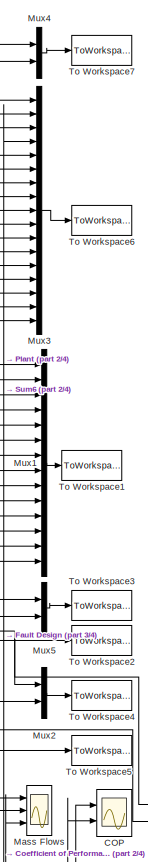
[diagram: root canvas - part 1/4, top center region]
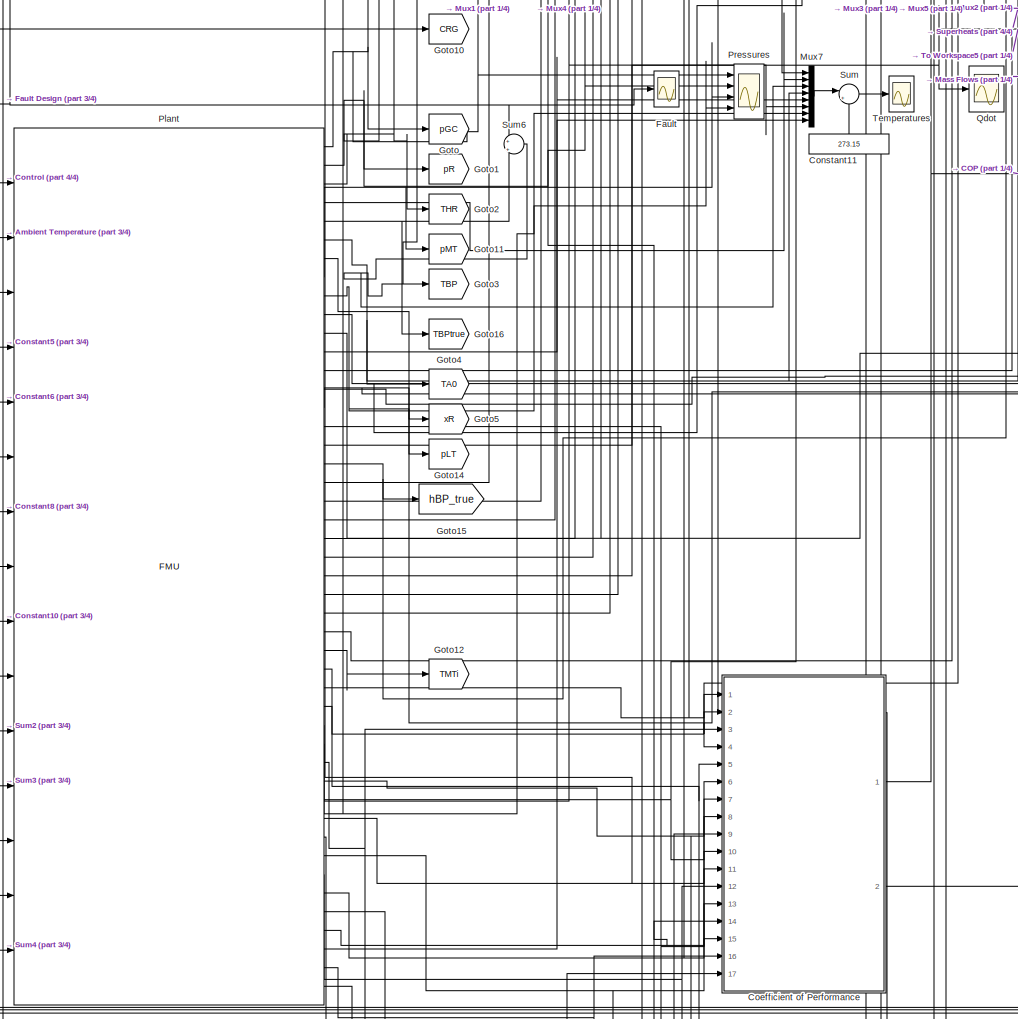
[diagram: root canvas - part 2/4, central region]
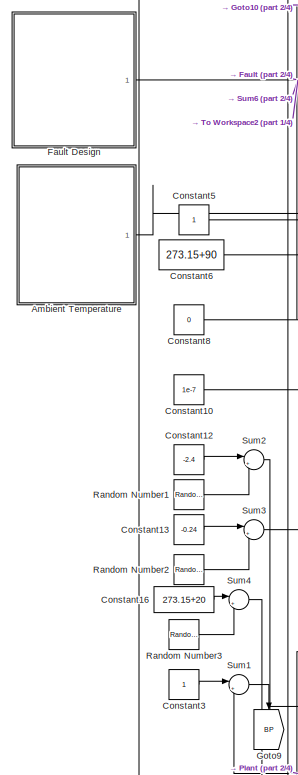
[diagram: root canvas - part 3/4, middle left region]
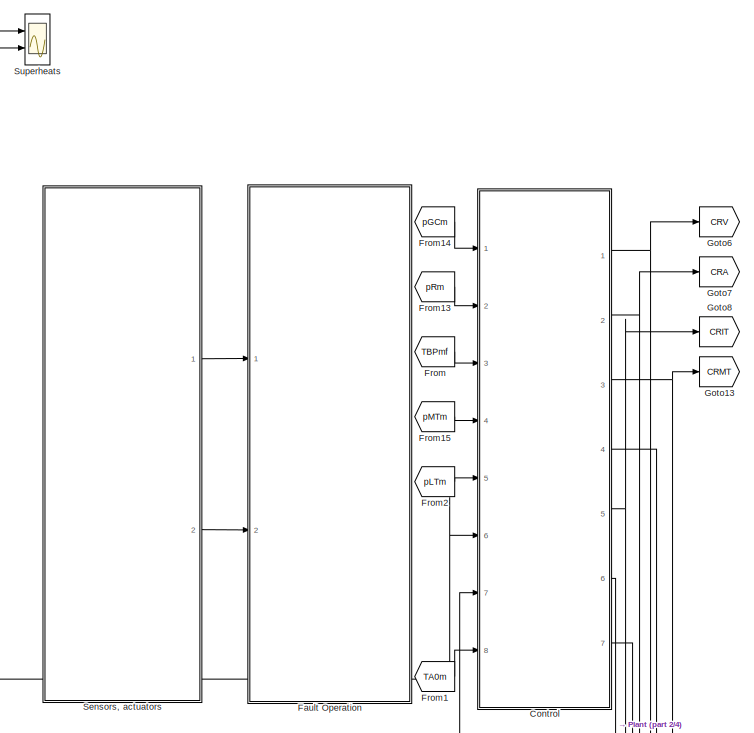
[diagram: root canvas - part 4/4, middle right region]
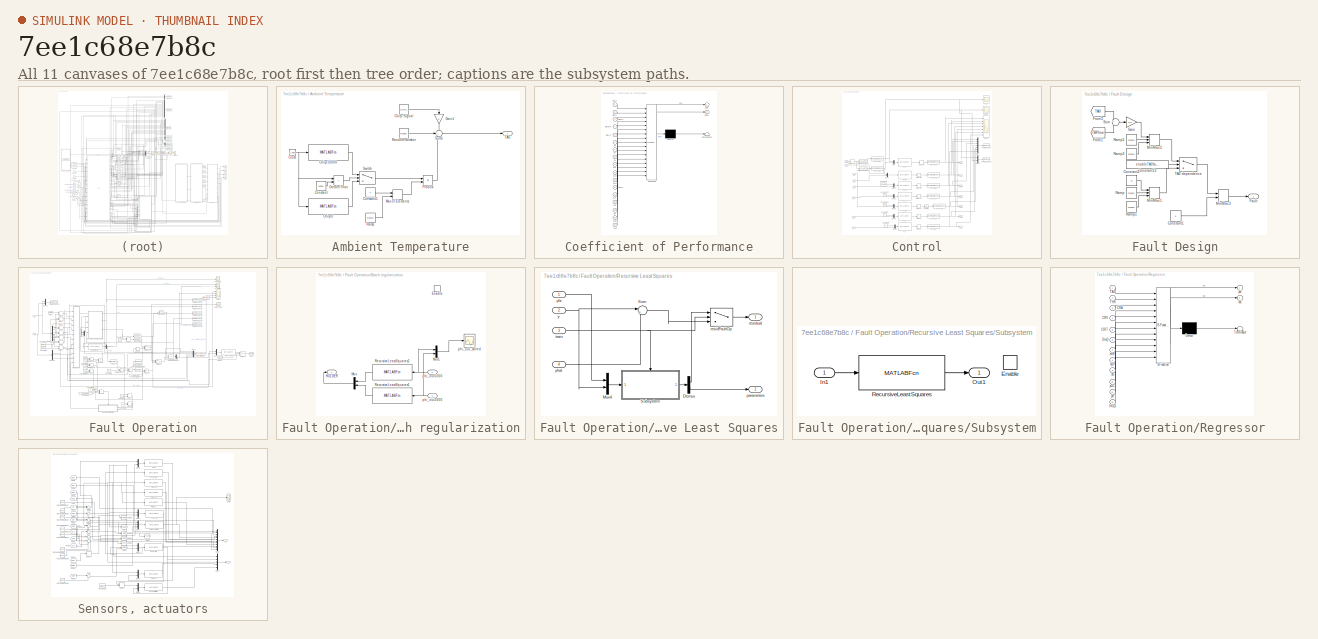
[diagram: thumbnail index - all 11 canvases of the model, root first then tree order]
MODEL slx_7ee1c68e7b8c
KIND model
CONFIG AbsTol = auto
CONFIG EnableMultiTasking = off
CONFIG FixedStep = 1
CONFIG InitFcn = clearvars\naddpath('<userpath>\Documents\Thesis\Codes\Linearization')\naddpath('<userpath>\Documents\Thesis\Codes\MatlabPlant')\naddpath('<userpath>\Documents\Thesis\Codes\ModelicaPlant\objects_inits')\naddpath('<userpath>\Documents\Thesis\Codes\ModelicaPlant\matfiles')\naddpath('<userpath>\Documents\Thesis\Codes\ModelicaPlant')\nmodelcreation_simplified\nsubstitution_simplified\ndistributedControllers\nde...<+185ch>
CONFIG MaxStep = auto
CONFIG MinStep = auto
CONFIG RelTol = 1e-3
CONFIG SampleTimeConstraint = Unconstrained
CONFIG Solver = ode1
CONFIG SolverName = ode1
CONFIG StartTime = 0.0
CONFIG StopTime = 20000
BLOCK [SubSystem] Ambient Temperature
  Ports = [0, 1]
  RequestExecContextInheritance = off
BLOCK [Reference] Ambient Temperature/Chirp Signal  REF=simulink/Sources/Chirp Signal
  Ports = [0, 1]
  SourceBlock = simulink/Sources/Chirp Signal
  SourceProductBaseCode = SL
  SourceProductName = Simulink
  SourceType = chirp
BLOCK [MATLABFcn] Ambient Temperature/Chirp0
  MATLABFcn = 10*cos(2*pi/1e4*(8*u-2/1e4*(u^2)))
  OutputDimensions = 1
  Ports = [1, 1]
BLOCK [MATLABFcn] Ambient Temperature/Chirp10000
  MATLABFcn = 10*cos(2*pi/1e4*(2*u)-pi)
  OutputDimensions = 1
  Ports = [1, 1]
BLOCK [Clock] Ambient Temperature/Clock
BLOCK [Constant] Ambient Temperature/Constant
  Value = 15000
BLOCK [Constant] Ambient Temperature/Constant1
BLOCK [Gain] Ambient Temperature/Gain1
  OutDataTypeStr = Inherit: Inherit via internal rule
  ParamDataTypeStr = Inherit: Inherit via internal rule
  SaturateOnIntegerOverflow = off
BLOCK [RelationalOperator] Ambient Temperature/GreaterThan
  InputSameDT = off
  Operator = >
  OutDataTypeStr = boolean
  Ports = [2, 1]
  RndMeth = Simplest
BLOCK [MinMax] Ambient Temperature/Max of Elements
  InputSameDT = off
  Inputs = 2
  Ports = [2, 1]
  SaturateOnIntegerOverflow = off
BLOCK [Product] Ambient Temperature/Product
  InputSameDT = off
  OutDataTypeStr = Inherit: Inherit via internal rule
  Ports = [2, 1]
  RndMeth = Floor
  SaturateOnIntegerOverflow = off
BLOCK [Reference] Ambient Temperature/Ramp  REF=simulink/Sources/Ramp
  Ports = [0, 1]
  SourceBlock = simulink/Sources/Ramp
  SourceProductBaseCode = SL
  SourceProductName = Simulink
  SourceType = Ramp
BLOCK [RandomNumber] Ambient Temperature/Random Number
  Mean = 273.15+20
  SampleTime = 1
  Seed = 50
  Variance = (1/10)^2/Ts
BLOCK [Sum] Ambient Temperature/Sum5
  IconShape = round
  InputSameDT = off
  Inputs = +++
  OutDataTypeStr = Inherit: Inherit via internal rule
  Ports = [3, 1]
  SaturateOnIntegerOverflow = off
BLOCK [Switch] Ambient Temperature/Switch
  Criteria = u2 > Threshold
  InputSameDT = off
  SaturateOnIntegerOverflow = off
BLOCK [Outport] Ambient Temperature/TA0
  IconDisplay = Port number
BLOCK [Scope] COP
  Floating = off
  NumInputPorts = 2
  Ports = [2]
  ScopeSpecificationString = Simulink.scopes.TimeScopeBlockCfg('CurrentConfiguration', extmgr.ConfigurationSet(extmgr.Configuration('Core','General UI',true),extmgr.Configuration('Core','Source UI',true),extmgr.Configuration('Sources','WiredSimulink',true,'DataLoggingVariableName','ScopeData2'),extmgr.Configuration('Visuals','Time Domain',true,'SerializedDisplays',{struct('MinYLimReal','-0.36995','MaxYLimReal','3.95045','YLab...<+1501ch>
BLOCK [SubSystem] Coefficient of Performance
  ErrorFcn = Stateflow.Translate.translate
  PermitHierarchicalResolution = ExplicitOnly
  Ports = [17, 2]
  RequestExecContextInheritance = off
  SFBlockType = MATLAB Function
  TreatAsAtomicUnit = on
BLOCK [Demux] Coefficient of Performance/ Demux 
  Outputs = 1
  Ports = [1, 1]
BLOCK [S-Function] Coefficient of Performance/ SFunction 
  EnableBusSupport = on
  FunctionName = sf_sfun
  PortCounts = [17 3]
  Ports = [17, 3]
  SFcnIsStateOwnerBlock = off
  SFunctionDeploymentMode = off
  Tag = Stateflow S-Function Estim_DistCont_Fault 3
BLOCK [Terminator] Coefficient of Performance/ Terminator 
BLOCK [Outport] Coefficient of Performance/COP
  IconDisplay = Port number
BLOCK [Outport] Coefficient of Performance/COPA
  IconDisplay = Port number
  Port = 2
BLOCK [Inport] Coefficient of Performance/DV
  IconDisplay = Port number
  Port = 15
BLOCK [Inport] Coefficient of Performance/DmC
  IconDisplay = Port number
BLOCK [Inport] Coefficient of Performance/DmF
  IconDisplay = Port number
  Port = 2
BLOCK [Inport] Coefficient of Performance/DmIT
  IconDisplay = Port number
  Port = 5
BLOCK [Inport] Coefficient of Performance/DmLT
  IconDisplay = Port number
  Port = 3
BLOCK [Inport] Coefficient of Performance/DmMT
  IconDisplay = Port number
  Port = 4
BLOCK [Inport] Coefficient of Performance/hA0
  IconDisplay = Port number
  Port = 17
BLOCK [Inport] Coefficient of Performance/hA0i
  IconDisplay = Port number
  Port = 16
BLOCK [Inport] Coefficient of Performance/hC
  IconDisplay = Port number
  Port = 6
BLOCK [Inport] Coefficient of Performance/hF
  IconDisplay = Port number
  Port = 7
BLOCK [Inport] Coefficient of Performance/hG
  IconDisplay = Port number
  Port = 14
BLOCK [Inport] Coefficient of Performance/hIT
  IconDisplay = Port number
  Port = 13
BLOCK [Inport] Coefficient of Performance/hL
  IconDisplay = Port number
  Port = 8
BLOCK [Inport] Coefficient of Performance/hLT
  IconDisplay = Port number
  Port = 9
BLOCK [Inport] Coefficient of Performance/hLTi
  IconDisplay = Port number
  Port = 10
BLOCK [Inport] Coefficient of Performance/hMT
  IconDisplay = Port number
  Port = 11
BLOCK [Inport] Coefficient of Performance/hMTi
  IconDisplay = Port number
  Port = 12
BLOCK [Constant] Constant10
  Value = 1e-7
BLOCK [Constant] Constant11
  Value = 273.15
BLOCK [Constant] Constant12
  Value = -2.4
BLOCK [Constant] Constant13
  Value = -0.24
BLOCK [Constant] Constant16
  Value = 273.15+20
BLOCK [Constant] Constant3
BLOCK [Constant] Constant5
BLOCK [Constant] Constant6
  Value = 273.15+90
BLOCK [Constant] Constant8
  Value = 0
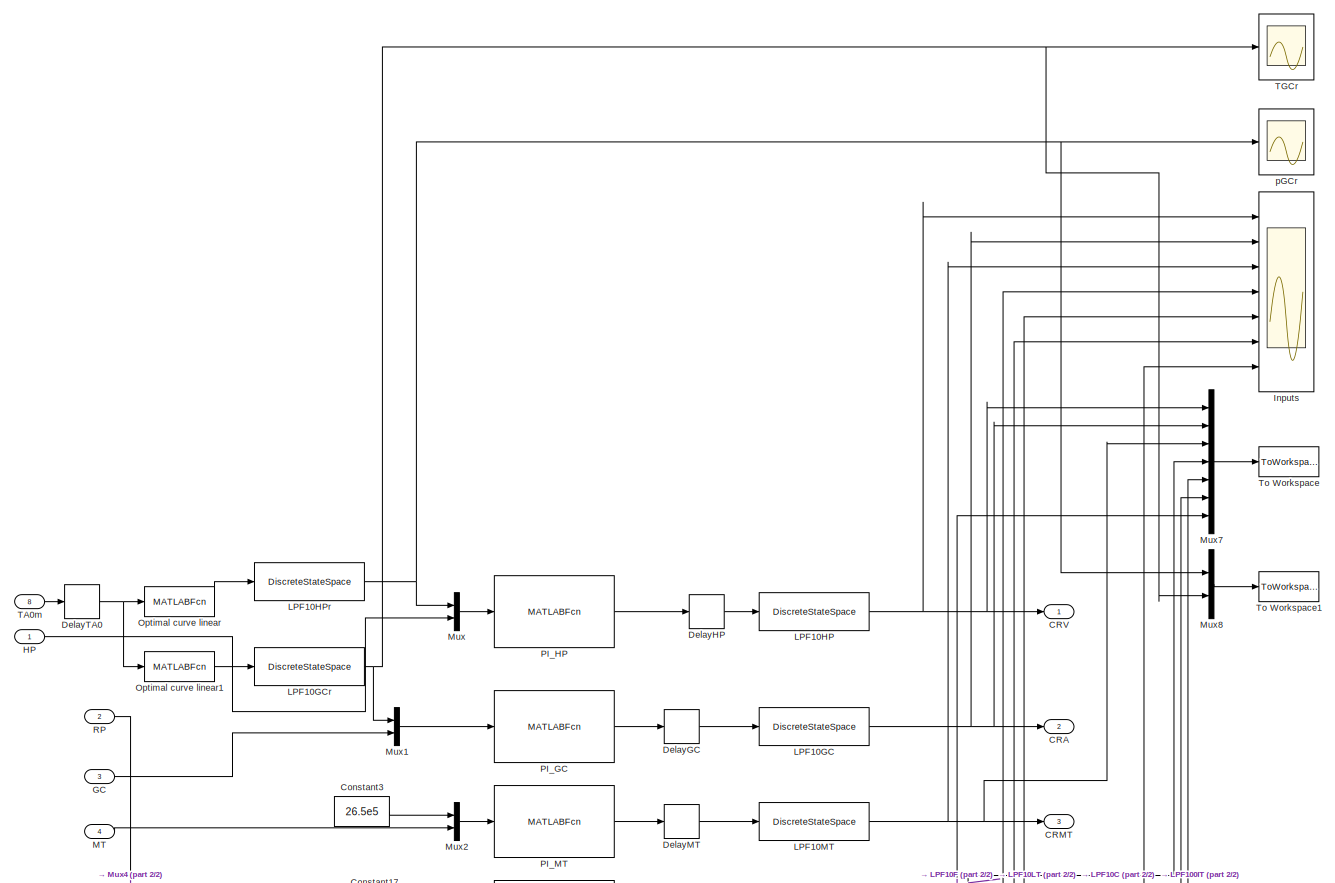
[diagram: Control - part 1/2, full width, middle band]
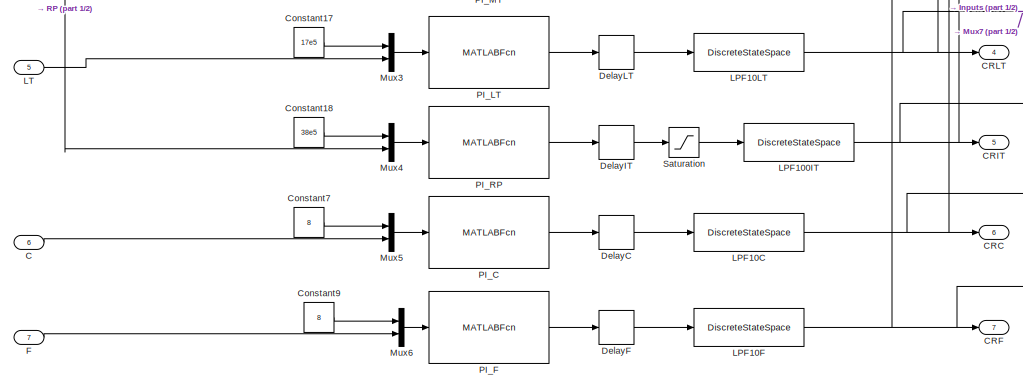
[diagram: Control - part 2/2, full width, bottom band]
BLOCK [SubSystem] Control
  Ports = [8, 7]
  RequestExecContextInheritance = off
BLOCK [Inport] Control/C
  IconDisplay = Port number
  Port = 6
BLOCK [Outport] Control/CRA
  IconDisplay = Port number
  Port = 2
BLOCK [Outport] Control/CRC
  IconDisplay = Port number
  Port = 6
BLOCK [Outport] Control/CRF
  IconDisplay = Port number
  Port = 7
BLOCK [Outport] Control/CRIT
  IconDisplay = Port number
  Port = 5
BLOCK [Outport] Control/CRLT
  IconDisplay = Port number
  Port = 4
BLOCK [Outport] Control/CRMT
  IconDisplay = Port number
  Port = 3
BLOCK [Outport] Control/CRV
  IconDisplay = Port number
BLOCK [Constant] Control/Constant17
  Value = 17e5
BLOCK [Constant] Control/Constant18
  Value = 38e5
BLOCK [Constant] Control/Constant3
  Value = 26.5e5
BLOCK [Constant] Control/Constant7
  Value = 8
BLOCK [Constant] Control/Constant9
  Value = 8
BLOCK [Delay] Control/DelayC
  DelayLength = 1
  InitialCondition = 0.1
  InputPortMap = u0
  Ports = [1, 1]
BLOCK [Delay] Control/DelayF
  DelayLength = 1
  InitialCondition = 0.04
  InputPortMap = u0
  Ports = [1, 1]
BLOCK [Delay] Control/DelayGC
  DelayLength = 1
  InitialCondition = 0.625
  InputPortMap = u0
  Ports = [1, 1]
BLOCK [Delay] Control/DelayHP
  DelayLength = 1
  InitialCondition = 0.25
  InputPortMap = u0
  Ports = [1, 1]
BLOCK [Delay] Control/DelayIT
  DelayLength = 1
  InitialCondition = 0.45
  InputPortMap = u0
  Ports = [1, 1]
BLOCK [Delay] Control/DelayLT
  DelayLength = 1
  InitialCondition = 0.3
  InputPortMap = u0
  Ports = [1, 1]
BLOCK [Delay] Control/DelayMT
  DelayLength = 1
  InitialCondition = 0.3
  InputPortMap = u0
  Ports = [1, 1]
BLOCK [Delay] Control/DelayTA0
  DelayLength = 1
  InitialCondition = 273.15+30
  InputPortMap = u0
  Ports = [1, 1]
BLOCK [Inport] Control/F
  IconDisplay = Port number
  Port = 7
BLOCK [Inport] Control/GC
  IconDisplay = Port number
  Port = 3
BLOCK [Inport] Control/HP
  IconDisplay = Port number
BLOCK [Scope] Control/Inputs
  Floating = off
  NumInputPorts = 7
  Ports = [7]
  ScopeSpecificationString = Simulink.scopes.TimeScopeBlockCfg('CurrentConfiguration', extmgr.ConfigurationSet(extmgr.Configuration('Core','General UI',true),extmgr.Configuration('Core','Source UI',true),extmgr.Configuration('Sources','WiredSimulink',true,'DataLoggingVariableName','ScopeData1'),extmgr.Configuration('Visuals','Time Domain',true,'SerializedDisplays',{struct('MinYLimReal','-0.12463','MaxYLimReal','1.12467','YLab...<+1740ch>
BLOCK [DiscreteStateSpace] Control/LPF100IT
  A = 0.99
  B = 0.125
  C = 0.0796
  D = 0
  InitialCondition = 0.45
  SampleTime = -1
BLOCK [DiscreteStateSpace] Control/LPF10C
  A = 0.9048
  B = 0.25
  C = 0.3807
  D = 0
  InitialCondition = 0.1
  SampleTime = -1
BLOCK [DiscreteStateSpace] Control/LPF10F
  A = 0.9048
  B = 0.25
  C = 0.3807
  D = 0
  InitialCondition = 0.04
  SampleTime = -1
BLOCK [DiscreteStateSpace] Control/LPF10GC
  A = 0.9048
  B = 0.25
  C = 0.3807
  D = 0
  InitialCondition = 0.625
  SampleTime = -1
BLOCK [DiscreteStateSpace] Control/LPF10GCr
  A = 0.9048
  B = 0.25
  C = 0.3807
  D = 0
  InitialCondition = 273.15+33
  SampleTime = -1
BLOCK [DiscreteStateSpace] Control/LPF10HP
  A = 0.9048
  B = 0.25
  C = 0.3807
  D = 0
  InitialCondition = 0.25
  SampleTime = -1
BLOCK [DiscreteStateSpace] Control/LPF10HPr
  A = 0.9048
  B = 0.25
  C = 0.3807
  D = 0
  InitialCondition = 85e5
  SampleTime = -1
BLOCK [DiscreteStateSpace] Control/LPF10LT
  A = 0.9048
  B = 0.25
  C = 0.3807
  D = 0
  InitialCondition = 0.3
  SampleTime = -1
BLOCK [DiscreteStateSpace] Control/LPF10MT
  A = 0.9048
  B = 0.25
  C = 0.3807
  D = 0
  InitialCondition = 0.3
  SampleTime = -1
BLOCK [Inport] Control/LT
  IconDisplay = Port number
  Port = 5
BLOCK [Inport] Control/MT
  IconDisplay = Port number
  Port = 4
BLOCK [Mux] Control/Mux
  DisplayOption = bar
  Inputs = 2
  Ports = [2, 1]
BLOCK [Mux] Control/Mux1
  DisplayOption = bar
  Inputs = 2
  Ports = [2, 1]
BLOCK [Mux] Control/Mux2
  DisplayOption = bar
  Inputs = 2
  Ports = [2, 1]
BLOCK [Mux] Control/Mux3
  DisplayOption = bar
  Inputs = 2
  Ports = [2, 1]
BLOCK [Mux] Control/Mux4
  DisplayOption = bar
  Inputs = 2
  Ports = [2, 1]
BLOCK [Mux] Control/Mux5
  DisplayOption = bar
  Inputs = 2
  Ports = [2, 1]
BLOCK [Mux] Control/Mux6
  DisplayOption = bar
  Inputs = 2
  Ports = [2, 1]
BLOCK [Mux] Control/Mux7
  DisplayOption = bar
  Inputs = 7
  Ports = [7, 1]
BLOCK [Mux] Control/Mux8
  DisplayOption = bar
  Inputs = 2
  Ports = [2, 1]
BLOCK [MATLABFcn] Control/Optimal curve linear
  MATLABFcn = 75e5 + (u(1)-(10+273.15))*15e5/20
  Ports = [1, 1]
BLOCK [MATLABFcn] Control/Optimal curve linear1
  MATLABFcn = 273.15 +30+ (u(1)-(10+273.15))*3/20
  Ports = [1, 1]
BLOCK [MATLABFcn] Control/PI_C
  MATLABFcn = PI_C.react(u(1),u(2))
  Ports = [1, 1]
BLOCK [MATLABFcn] Control/PI_F
  MATLABFcn = PI_F.react(u(1),u(2))
  Ports = [1, 1]
BLOCK [MATLABFcn] Control/PI_GC
  MATLABFcn = PI_GC.react(u(1),u(2))
  Ports = [1, 1]
BLOCK [MATLABFcn] Control/PI_HP
  MATLABFcn = PI_HP.react(u(1),u(2))
  Ports = [1, 1]
BLOCK [MATLABFcn] Control/PI_LT
  MATLABFcn = PI_LT.react(u(1),u(2))
  Ports = [1, 1]
BLOCK [MATLABFcn] Control/PI_MT
  MATLABFcn = PI_MT.react(u(1),u(2))
  Ports = [1, 1]
BLOCK [MATLABFcn] Control/PI_RP
  MATLABFcn = PI_RP.react(u(1),u(2))
  Ports = [1, 1]
BLOCK [Inport] Control/RP
  IconDisplay = Port number
  Port = 2
BLOCK [Saturate] Control/Saturation
  InputPortMap = u0
  LowerLimit = 0
  Ports = [1, 1]
  UpperLimit = 0.7
BLOCK [Inport] Control/TA0m
  IconDisplay = Port number
  Port = 8
BLOCK [Scope] Control/TGCr
  Floating = off
  NumInputPorts = 1
  Ports = [1]
  ScopeSpecificationString = Simulink.scopes.TimeScopeBlockCfg('CurrentConfiguration', extmgr.ConfigurationSet(extmgr.Configuration('Core','General UI',true),extmgr.Configuration('Core','Source UI',true),extmgr.Configuration('Sources','WiredSimulink',true,'DataLoggingVariableName','ScopeData5'),extmgr.Configuration('Visuals','Time Domain',true,'SerializedDisplays',{struct('MinYLimReal','92.8277','MaxYLimReal','330.06372','YLa...<+1630ch>
BLOCK [ToWorkspace] Control/To Workspace
  FixptAsFi = on
  MaxDataPoints = inf
  Ports = [1]
  SampleTime = -1
  Save2DSignal = 3-D array (concatenate along third dimension)
  SaveFormat = Timeseries
  VariableName = inputs_sim
BLOCK [ToWorkspace] Control/To Workspace1
  FixptAsFi = on
  MaxDataPoints = inf
  Ports = [1]
  SampleTime = -1
  Save2DSignal = 3-D array (concatenate along third dimension)
  SaveFormat = Timeseries
  VariableName = ref_sim
BLOCK [Scope] Control/pGCr
  Floating = off
  NumInputPorts = 1
  Ports = [1]
  ScopeSpecificationString = Simulink.scopes.TimeScopeBlockCfg('CurrentConfiguration', extmgr.ConfigurationSet(extmgr.Configuration('Core','General UI',true),extmgr.Configuration('Core','Source UI',true),extmgr.Configuration('Sources','WiredSimulink',true,'DataLoggingVariableName','ScopeData4'),extmgr.Configuration('Visuals','Time Domain',true,'SerializedDisplays',{struct('MinYLimReal','2931567.90336','MaxYLimReal','9165588.3...<+1678ch>
BLOCK [Scope] Fault
  Floating = off
  NumInputPorts = 1
  Ports = [1]
  ScopeSpecificationString = Simulink.scopes.TimeScopeBlockCfg('CurrentConfiguration', extmgr.ConfigurationSet(extmgr.Configuration('Core','General UI',true),extmgr.Configuration('Core','Source UI',true),extmgr.Configuration('Sources','WiredSimulink',true,'DataLoggingVariableName','ScopeData1'),extmgr.Configuration('Visuals','Time Domain',true,'SerializedDisplays',{struct('MinYLimReal','-7.58508','MaxYLimReal','0.84279','YLab...<+1429ch>
BLOCK [SubSystem] Fault Design
  Ports = [0, 1]
  RequestExecContextInheritance = off
BLOCK [Constant] Fault Design/Constant1
  Value = 0
BLOCK [Constant] Fault Design/Constant13
  Value = enableTA0fault
BLOCK [Constant] Fault Design/Constant2
  Value = -5
BLOCK [Outport] Fault Design/Fault
  IconDisplay = Port number
BLOCK [From] Fault Design/From1
  GotoTag = TBPtrue
  TagVisibility = global
BLOCK [From] Fault Design/From3
  GotoTag = TA0
  TagVisibility = global
BLOCK [Gain] Fault Design/Gain
  Gain = 0.5
  OutDataTypeStr = Inherit: Inherit via internal rule
  ParamDataTypeStr = Inherit: Inherit via internal rule
  SaturateOnIntegerOverflow = off
BLOCK [MinMax] Fault Design/MinMax1
  Function = max
  InputSameDT = off
  Inputs = 3
  Ports = [3, 1]
  SaturateOnIntegerOverflow = off
BLOCK [MinMax] Fault Design/MinMax2
  Function = max
  InputSameDT = off
  Inputs = 3
  Ports = [3, 1]
  SaturateOnIntegerOverflow = off
BLOCK [MinMax] Fault Design/MinMax3
  InputSameDT = off
  Inputs = 2
  Ports = [2, 1]
  SaturateOnIntegerOverflow = off
BLOCK [Reference] Fault Design/Ramp  REF=simulink/Sources/Ramp
  Ports = [0, 1]
  SourceBlock = simulink/Sources/Ramp
  SourceProductBaseCode = SL
  SourceProductName = Simulink
  SourceType = Ramp
BLOCK [Reference] Fault Design/Ramp1  REF=simulink/Sources/Ramp
  Ports = [0, 1]
  SourceBlock = simulink/Sources/Ramp
  SourceProductBaseCode = SL
  SourceProductName = Simulink
  SourceType = Ramp
BLOCK [Reference] Fault Design/Ramp2  REF=simulink/Sources/Ramp
  Ports = [0, 1]
  SourceBlock = simulink/Sources/Ramp
  SourceProductBaseCode = SL
  SourceProductName = Simulink
  SourceType = Ramp
BLOCK [Reference] Fault Design/Ramp3  REF=simulink/Sources/Ramp
  Ports = [0, 1]
  SourceBlock = simulink/Sources/Ramp
  SourceProductBaseCode = SL
  SourceProductName = Simulink
  SourceType = Ramp
BLOCK [Sum] Fault Design/Sum
  IconShape = round
  InputSameDT = off
  Inputs = +|-
  OutDataTypeStr = Inherit: Inherit via internal rule
  Ports = [2, 1]
  SaturateOnIntegerOverflow = off
BLOCK [Switch] Fault Design/TA0 dependence
  Criteria = u2 > Threshold
  InputSameDT = off
  SaturateOnIntegerOverflow = off
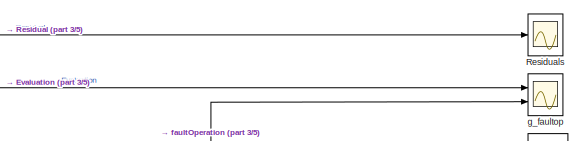
[diagram: Fault Operation - part 1/5, top right region]
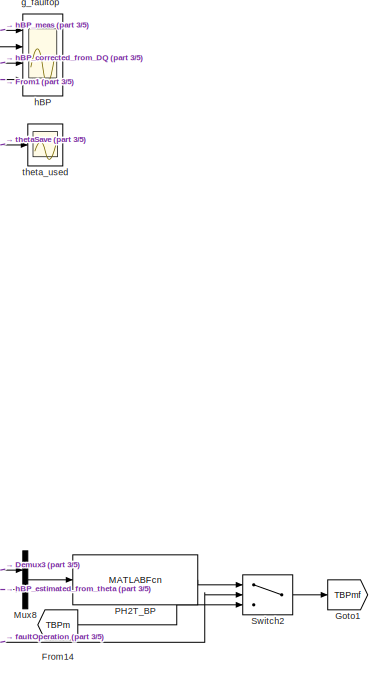
[diagram: Fault Operation - part 2/5, middle right region]
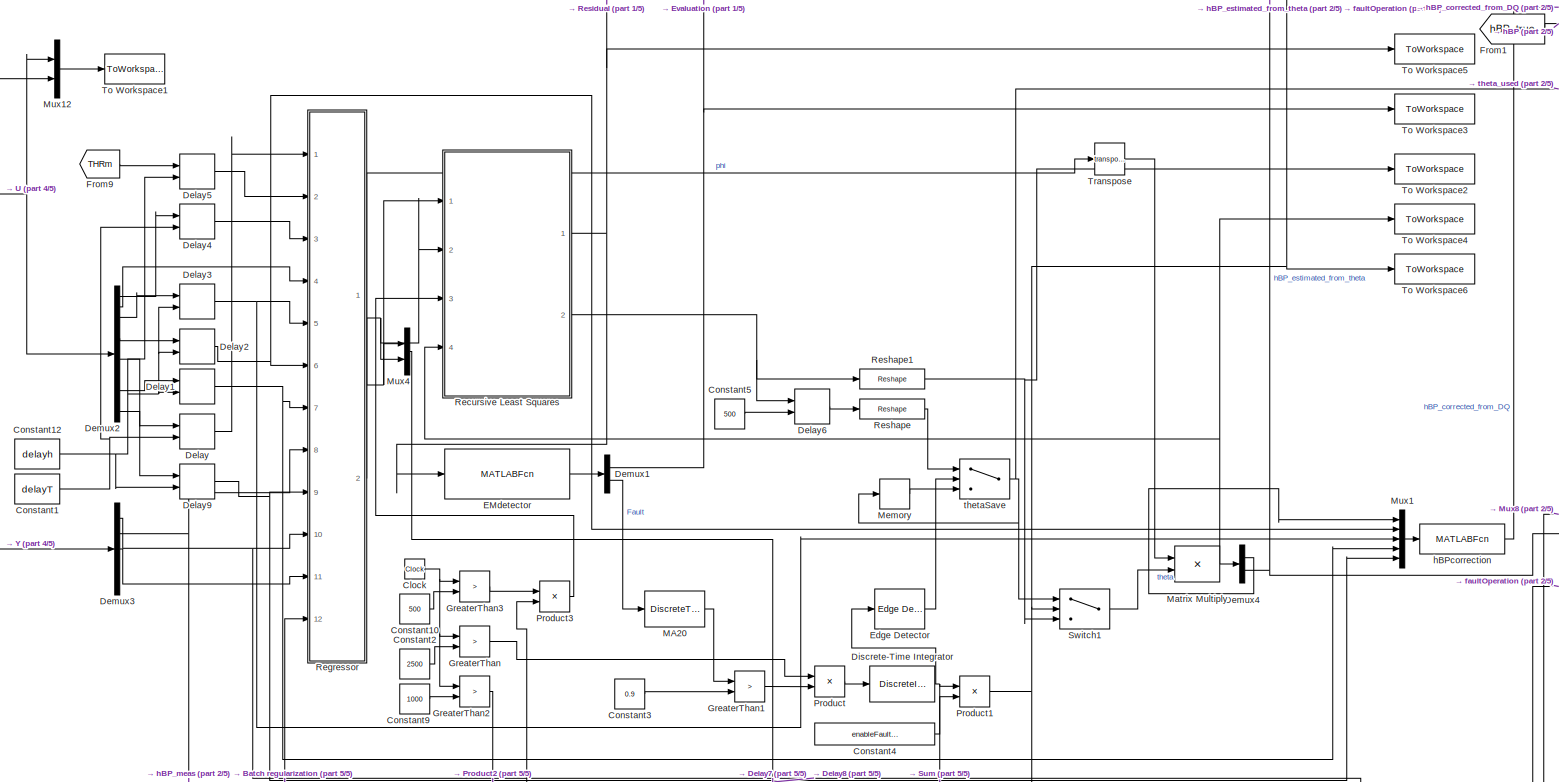
[diagram: Fault Operation - part 3/5, full width, middle band]
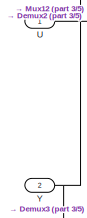
[diagram: Fault Operation - part 4/5, middle left region]
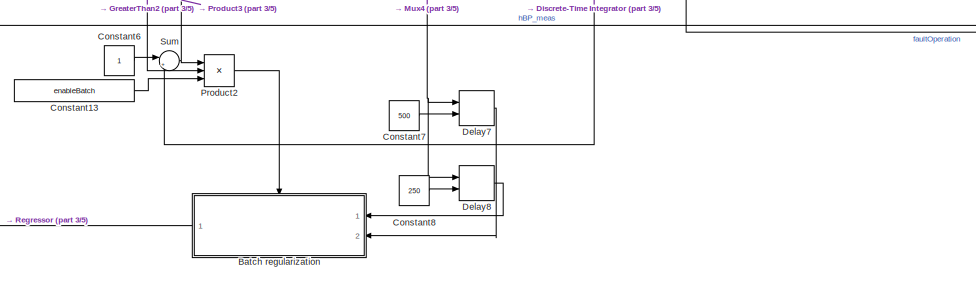
[diagram: Fault Operation - part 5/5, bottom center region]
BLOCK [SubSystem] Fault Operation
  Ports = [2]
  RequestExecContextInheritance = off
BLOCK [SubSystem] Fault Operation/Batch regularization
  Ports = [2, 1, 1]
  RequestExecContextInheritance = off
BLOCK [EnablePort] Fault Operation/Batch regularization/Enable
  Ports = []
BLOCK [Outport] Fault Operation/Batch regularization/HOLDER
  IconDisplay = Port number
BLOCK [Mux] Fault Operation/Batch regularization/Mux
  DisplayOption = bar
  Inputs = 2
  Ports = [2, 1]
BLOCK [Mux] Fault Operation/Batch regularization/Mux1
  DisplayOption = bar
  Inputs = 2
  Ports = [2, 1]
BLOCK [MATLABFcn] Fault Operation/Batch regularization/RecursiveLeastSquares1
  MATLABFcn = rls.regression_simulink(u(1:nr),u(nr+1:nr+npy)',1)
  Output1D = off
  OutputDimensions = length(rls.e)+size(rls.t,1)*size(rls.t,2)
  Ports = [1, 1]
BLOCK [MATLABFcn] Fault Operation/Batch regularization/RecursiveLeastSquares2
  MATLABFcn = rls.regression_simulink(u(1:nr),u(nr+1:nr+npy)',1)
  Output1D = off
  OutputDimensions = length(rls.e)+size(rls.t,1)*size(rls.t,2)
  Ports = [1, 1]
BLOCK [Inport] Fault Operation/Batch regularization/phi_out2000
  IconDisplay = Port number
BLOCK [Inport] Fault Operation/Batch regularization/phi_out5000
  IconDisplay = Port number
  Port = 2
BLOCK [Scope] Fault Operation/Batch regularization/phi_out_stored
  Floating = off
  NumInputPorts = 1
  Ports = [1]
  ScopeSpecificationString = Simulink.scopes.TimeScopeBlockCfg('CurrentConfiguration', extmgr.ConfigurationSet(extmgr.Configuration('Core','General UI',true),extmgr.Configuration('Core','Source UI',true),extmgr.Configuration('Sources','WiredSimulink',true,'DataLoggingVariableName','ScopeData1'),extmgr.Configuration('Visuals','Time Domain',true,'SerializedDisplays',{struct('MinYLimReal','-72903.15028','MaxYLimReal','49559.2215...<+2285ch>
BLOCK [Clock] Fault Operation/Clock
BLOCK [Constant] Fault Operation/Constant1
  Value = delayT
BLOCK [Constant] Fault Operation/Constant10
  Value = 500
BLOCK [Constant] Fault Operation/Constant12
  Value = delayh
BLOCK [Constant] Fault Operation/Constant13
  Value = enableBatch
BLOCK [Constant] Fault Operation/Constant2
  Value = 2500
BLOCK [Constant] Fault Operation/Constant3
  Value = 0.9
BLOCK [Constant] Fault Operation/Constant4
  Value = enableFaultOperation
BLOCK [Constant] Fault Operation/Constant5
  Value = 500
BLOCK [Constant] Fault Operation/Constant6
BLOCK [Constant] Fault Operation/Constant7
  Value = 500
BLOCK [Constant] Fault Operation/Constant8
  Value = 250
BLOCK [Constant] Fault Operation/Constant9
  Value = 1000
BLOCK [Delay] Fault Operation/Delay
  DelayLength = delayh
  DelayLengthSource = Input port
  DelayLengthUpperLimit = 1000
  InitialCondition = 30+273
  InputPortMap = u0,p1
  Ports = [2, 1]
BLOCK [Delay] Fault Operation/Delay1
  DelayLength = delayh
  DelayLengthSource = Input port
  DelayLengthUpperLimit = 1000
  InitialCondition = 525e3
  InputPortMap = u0,p1
  Ports = [2, 1]
BLOCK [Delay] Fault Operation/Delay2
  DelayLength = delayh
  DelayLengthSource = Input port
  DelayLengthUpperLimit = 1000
  InitialCondition = 0.5
  InputPortMap = u0,p1
  Ports = [2, 1]
BLOCK [Delay] Fault Operation/Delay3
  DelayLength = delayh
  DelayLengthSource = Input port
  DelayLengthUpperLimit = 1000
  InitialCondition = 0.5
  InputPortMap = u0,p1
  Ports = [2, 1]
BLOCK [Delay] Fault Operation/Delay4
  DelayLength = delayh
  DelayLengthSource = Input port
  DelayLengthUpperLimit = 1000
  InitialCondition = 0.5
  InputPortMap = u0,p1
  Ports = [2, 1]
BLOCK [Delay] Fault Operation/Delay5
  DelayLength = delayh
  DelayLengthSource = Input port
  DelayLengthUpperLimit = 1000
  InitialCondition = 30+273
  InputPortMap = u0,p1
  Ports = [2, 1]
BLOCK [Delay] Fault Operation/Delay6
  DelayLength = delayh
  DelayLengthSource = Input port
  DelayLengthUpperLimit = 500
  InitialCondition = zeros(size(rls.t,1)*size(rls.t,2),500)
  InputPortMap = u0,p1
  Ports = [2, 1]
BLOCK [Delay] Fault Operation/Delay7
  DelayLength = delayh
  DelayLengthSource = Input port
  DelayLengthUpperLimit = 500
  InitialCondition = zeros(size(rls.t,1)+size(rls.t,2),500)
  InputPortMap = u0,p1
  Ports = [2, 1]
BLOCK [Delay] Fault Operation/Delay8
  DelayLength = delayh
  DelayLengthSource = Input port
  DelayLengthUpperLimit = 250
  InitialCondition = zeros(size(rls.t,1)+size(rls.t,2),250)
  InputPortMap = u0,p1
  Ports = [2, 1]
BLOCK [Delay] Fault Operation/Delay9
  DelayLength = delayh
  DelayLengthSource = Input port
  DelayLengthUpperLimit = 1000
  InitialCondition = 80
  InputPortMap = u0,p1
  Ports = [2, 1]
BLOCK [Demux] Fault Operation/Demux1
  DisplayOption = bar
  Outputs = [1 1]
  Ports = [1, 2]
BLOCK [Demux] Fault Operation/Demux2
  DisplayOption = bar
  Outputs = 12
  Ports = [1, 12]
BLOCK [Demux] Fault Operation/Demux3
  DisplayOption = bar
  Outputs = 5
  Ports = [1, 5]
BLOCK [Demux] Fault Operation/Demux4
  DisplayOption = bar
  Outputs = 2
  Ports = [1, 2]
BLOCK [DiscreteIntegrator] Fault Operation/Discrete-Time Integrator
  ICPrevOutput = DiscIntNeverNeededParam
  ICPrevScaledInput = DiscIntNeverNeededParam
  InitialConditionSetting = Auto
  LimitOutput = on
  LowerSaturationLimit = 0
  Ports = [1, 1]
  SampleTime = -1
  UpperSaturationLimit = 1
BLOCK [MATLABFcn] Fault Operation/EMdetector
  MATLABFcn = fdEM.detect_simulink(u')
  OutputDimensions = 2
  Ports = [1, 1]
BLOCK [Reference] Fault Operation/Edge Detector  REF=dspswit3/Edge
Detector
  Ports = [1, 1]
  SourceBlock = dspswit3/Edge\nDetector
  SourceProductBaseCode = DS
  SourceProductName = DSP System Toolbox
  SourceType = Edge Detector
  UserDataPersistent = on
BLOCK [From] Fault Operation/From1
  GotoTag = hBP_true
  TagVisibility = global
BLOCK [From] Fault Operation/From14
  GotoTag = TBPm
  TagVisibility = global
BLOCK [From] Fault Operation/From9
  GotoTag = THRm
  TagVisibility = global
BLOCK [Goto] Fault Operation/Goto1
  GotoTag = TBPmf
  TagVisibility = global
BLOCK [RelationalOperator] Fault Operation/GreaterThan
  InputSameDT = off
  Operator = >
  OutDataTypeStr = boolean
  Ports = [2, 1]
  RndMeth = Simplest
BLOCK [RelationalOperator] Fault Operation/GreaterThan1
  InputSameDT = off
  Operator = >
  OutDataTypeStr = boolean
  Ports = [2, 1]
  RndMeth = Simplest
BLOCK [RelationalOperator] Fault Operation/GreaterThan2
  InputSameDT = off
  Operator = >
  OutDataTypeStr = boolean
  Ports = [2, 1]
  RndMeth = Simplest
BLOCK [RelationalOperator] Fault Operation/GreaterThan3
  InputSameDT = off
  Operator = >
  OutDataTypeStr = boolean
  Ports = [2, 1]
  RndMeth = Simplest
BLOCK [DiscreteTransferFcn] Fault Operation/MA20
  Denominator = [1 0 0 0 0 0 0 0 0 0 0 0 0 0 0 0 0 0 0 0]
  InitialStates = zeros(1,19)
  InputPortMap = u0
  Numerator = [0.05 0.05 0.05 0.05 0.05 0.05 0.05 0.05 0.05 0.05 0.05 0.05 0.05 0.05 0.05 0.05 0.05 0.05 0.05 0.05]
  Ports = [1, 1]
  a0EqualsOne = on
BLOCK [Product] Fault Operation/Matrix Multiply
  InputSameDT = off
  Multiplication = Matrix(*)
  OutDataTypeStr = Inherit: Inherit via internal rule
  Ports = [2, 1]
  RndMeth = Floor
  SaturateOnIntegerOverflow = off
BLOCK [Memory] Fault Operation/Memory
  InheritSampleTime = on
  InitialCondition = zeros(size(rls.t,1),size(rls.t,2))
  LinearizeAsDelay = on
BLOCK [Mux] Fault Operation/Mux1
  DisplayOption = bar
  Inputs = 5
  Ports = [5, 1]
BLOCK [Mux] Fault Operation/Mux12
  DisplayOption = bar
  Inputs = 2
  Ports = [2, 1]
BLOCK [Mux] Fault Operation/Mux4
  DisplayOption = bar
  Inputs = [size(rls.t,1) size(rls.t,2)]
  Ports = [2, 1]
BLOCK [Mux] Fault Operation/Mux8
  DisplayOption = bar
  Inputs = 2
  Ports = [2, 1]
BLOCK [MATLABFcn] Fault Operation/PH2T_BP
  MATLABFcn = CoolProp.PropsSI('T','P',u(1),'H',u(2),'CO2')
  OutputDimensions = 1
  Ports = [1, 1]
BLOCK [Product] Fault Operation/Product
  InputSameDT = off
  OutDataTypeStr = Inherit: Inherit via internal rule
  Ports = [2, 1]
  RndMeth = Floor
  SaturateOnIntegerOverflow = off
BLOCK [Product] Fault Operation/Product1
  InputSameDT = off
  OutDataTypeStr = Inherit: Inherit via internal rule
  Ports = [2, 1]
  RndMeth = Floor
  SaturateOnIntegerOverflow = off
BLOCK [Product] Fault Operation/Product2
  InputSameDT = off
  Inputs = 3
  OutDataTypeStr = Inherit: Inherit via internal rule
  Ports = [3, 1]
  RndMeth = Floor
  SaturateOnIntegerOverflow = off
BLOCK [Product] Fault Operation/Product3
  InputSameDT = off
  OutDataTypeStr = Inherit: Inherit via internal rule
  Ports = [2, 1]
  RndMeth = Floor
  SaturateOnIntegerOverflow = off
BLOCK [SubSystem] Fault Operation/Recursive Least Squares
  Ports = [4, 2]
  RequestExecContextInheritance = off
BLOCK [Demux] Fault Operation/Recursive Least Squares/Demux
  DisplayOption = bar
  Outputs = [length(rls.e) size(rls.t,1)*size(rls.t,2)]
  Ports = [1, 2]
BLOCK [Mux] Fault Operation/Recursive Least Squares/Mux4
  DisplayOption = bar
  Inputs = [size(rls.t,1) size(rls.t,2)]
  Ports = [2, 1]
BLOCK [SubSystem] Fault Operation/Recursive Least Squares/Subsystem
  Ports = [1, 1, 1]
  RequestExecContextInheritance = off
BLOCK [EnablePort] Fault Operation/Recursive Least Squares/Subsystem/Enable
  Ports = []
BLOCK [Inport] Fault Operation/Recursive Least Squares/Subsystem/In1
  IconDisplay = Port number
BLOCK [Outport] Fault Operation/Recursive Least Squares/Subsystem/Out1
  IconDisplay = Port number
BLOCK [MATLABFcn] Fault Operation/Recursive Least Squares/Subsystem/RecursiveLeastSquares
  MATLABFcn = rls.regression_simulink(u(1:nr),u(nr+1:nr+npy)',0)
  Output1D = off
  OutputDimensions = length(rls.e)+size(rls.t,1)*size(rls.t,2)
  Ports = [1, 1]
BLOCK [Sum] Fault Operation/Recursive Least Squares/Sum
  IconShape = round
  InputSameDT = off
  Inputs = |+-
  OutDataTypeStr = Inherit: Inherit via internal rule
  Ports = [2, 1]
  SaturateOnIntegerOverflow = off
BLOCK [Outport] Fault Operation/Recursive Least Squares/parameters
  IconDisplay = Port number
  Port = 2
BLOCK [Inport] Fault Operation/Recursive Least Squares/phi
  IconDisplay = Port number
BLOCK [Switch] Fault Operation/Recursive Least Squares/residFaultOp
  Criteria = u2 > Threshold
  InputSameDT = off
  SaturateOnIntegerOverflow = off
BLOCK [Outport] Fault Operation/Recursive Least Squares/residual
  IconDisplay = Port number
BLOCK [Inport] Fault Operation/Recursive Least Squares/train
  IconDisplay = Port number
  Port = 3
BLOCK [Inport] Fault Operation/Recursive Least Squares/y
  IconDisplay = Port number
  Port = 2
BLOCK [Inport] Fault Operation/Recursive Least Squares/yhat
  IconDisplay = Port number
  Port = 4
BLOCK [SubSystem] Fault Operation/Regressor
  ErrorFcn = Stateflow.Translate.translate
  PermitHierarchicalResolution = ExplicitOnly
  Ports = [12, 2]
  RequestExecContextInheritance = off
  SFBlockType = MATLAB Function
  TreatAsAtomicUnit = on
BLOCK [Demux] Fault Operation/Regressor/ Demux 
  Outputs = 1
  Ports = [1, 1]
BLOCK [S-Function] Fault Operation/Regressor/ SFunction 
  EnableBusSupport = on
  FunctionName = sf_sfun
  PortCounts = [12 3]
  Ports = [12, 3]
  SFcnIsStateOwnerBlock = off
  SFunctionDeploymentMode = off
  Tag = Stateflow S-Function Estim_DistCont_Fault 2
BLOCK [Terminator] Fault Operation/Regressor/ Terminator 
BLOCK [Inport] Fault Operation/Regressor/CRA
  IconDisplay = Port number
  Port = 3
BLOCK [Inport] Fault Operation/Regressor/CRIT
  IconDisplay = Port number
  Port = 5
BLOCK [Inport] Fault Operation/Regressor/CRV
  IconDisplay = Port number
  Port = 4
BLOCK [Inport] Fault Operation/Regressor/DmQ
  IconDisplay = Port number
  Port = 6
BLOCK [Inport] Fault Operation/Regressor/HOLD
  IconDisplay = Port number
  Port = 12
BLOCK [Inport] Fault Operation/Regressor/TA0
  IconDisplay = Port number
BLOCK [Inport] Fault Operation/Regressor/THR
  IconDisplay = Port number
  Port = 2
BLOCK [Inport] Fault Operation/Regressor/dG
  IconDisplay = Port number
  Port = 9
BLOCK [Inport] Fault Operation/Regressor/hBP
  IconDisplay = Port number
  Port = 8
BLOCK [Inport] Fault Operation/Regressor/hHR
  IconDisplay = Port number
  Port = 7
BLOCK [Outport] Fault Operation/Regressor/out
  IconDisplay = Port number
  Port = 2
BLOCK [Inport] Fault Operation/Regressor/pGC
  IconDisplay = Port number
  Port = 10
BLOCK [Inport] Fault Operation/Regressor/pR
  IconDisplay = Port number
  Port = 11
BLOCK [Outport] Fault Operation/Regressor/phi
  IconDisplay = Port number
BLOCK [Reshape] Fault Operation/Reshape
  OutputDimensionality = Customize
  OutputDimensions = [size(rls.t,1),size(rls.t,2)]
  Ports = [1, 1]
BLOCK [Reshape] Fault Operation/Reshape1
  OutputDimensionality = Customize
  OutputDimensions = [size(rls.t,1),size(rls.t,2)]
  Ports = [1, 1]
BLOCK [Scope] Fault Operation/Residuals
  Floating = off
  NumInputPorts = 1
  Ports = [1]
  ScopeSpecificationString = Simulink.scopes.TimeScopeBlockCfg('CurrentConfiguration', extmgr.ConfigurationSet(extmgr.Configuration('Core','General UI',true),extmgr.Configuration('Core','Source UI',true),extmgr.Configuration('Sources','WiredSimulink',true,'DataLoggingVariableName','ScopeData1'),extmgr.Configuration('Visuals','Time Domain',true,'SerializedDisplays',{struct('MinYLimReal','-71780.94408','MaxYLimReal','56633.4807...<+2038ch>
BLOCK [Sum] Fault Operation/Sum
  IconShape = round
  InputSameDT = off
  Inputs = |+-
  OutDataTypeStr = Inherit: Inherit via internal rule
  Ports = [2, 1]
  SaturateOnIntegerOverflow = off
BLOCK [Switch] Fault Operation/Switch1
  Criteria = u2 > Threshold
  InputSameDT = off
  SaturateOnIntegerOverflow = off
BLOCK [Switch] Fault Operation/Switch2
  Criteria = u2 > Threshold
  InputSameDT = off
  SaturateOnIntegerOverflow = off
BLOCK [ToWorkspace] Fault Operation/To Workspace1
  FixptAsFi = on
  MaxDataPoints = inf
  Ports = [1]
  SampleTime = -1
  Save2DSignal = 3-D array (concatenate along third dimension)
  SaveFormat = Structure With Time
  VariableName = uy_sim
BLOCK [ToWorkspace] Fault Operation/To Workspace2
  FixptAsFi = on
  MaxDataPoints = inf
  Ports = [1]
  SampleTime = -1
  Save2DSignal = 3-D array (concatenate along third dimension)
  SaveFormat = Structure With Time
  VariableName = theta_sim
BLOCK [ToWorkspace] Fault Operation/To Workspace3
  FixptAsFi = on
  MaxDataPoints = inf
  Ports = [1]
  SampleTime = -1
  Save2DSignal = 3-D array (concatenate along third dimension)
  SaveFormat = Structure With Time
  VariableName = g_sim
BLOCK [ToWorkspace] Fault Operation/To Workspace4
  FixptAsFi = on
  MaxDataPoints = inf
  Ports = [1]
  SampleTime = -1
  Save2DSignal = 3-D array (concatenate along third dimension)
  SaveFormat = Structure With Time
  VariableName = yhat_sim
BLOCK [ToWorkspace] Fault Operation/To Workspace5
  FixptAsFi = on
  MaxDataPoints = inf
  Ports = [1]
  SampleTime = -1
  Save2DSignal = 3-D array (concatenate along third dimension)
  SaveFormat = Structure With Time
  VariableName = residual_sim
BLOCK [ToWorkspace] Fault Operation/To Workspace6
  FixptAsFi = on
  MaxDataPoints = inf
  Ports = [1]
  SampleTime = -1
  Save2DSignal = 3-D array (concatenate along third dimension)
  SaveFormat = Structure With Time
  VariableName = faultop_sim
BLOCK [Math] Fault Operation/Transpose
  Operator = transpose
  Ports = [1, 1]
BLOCK [Inport] Fault Operation/U
  IconDisplay = Port number
BLOCK [Inport] Fault Operation/Y
  IconDisplay = Port number
  Port = 2
BLOCK [Scope] Fault Operation/g_faultop
  Floating = off
  NumInputPorts = 2
  Ports = [2]
  ScopeSpecificationString = Simulink.scopes.TimeScopeBlockCfg('CurrentConfiguration', extmgr.ConfigurationSet(extmgr.Configuration('Core','General UI',true),extmgr.Configuration('Core','Source UI',true),extmgr.Configuration('Sources','WiredSimulink',true,'DataLoggingVariableName','ScopeData1'),extmgr.Configuration('Visuals','Time Domain',true,'SerializedDisplays',{struct('MinYLimReal','-0.125','MaxYLimReal','1.125','YLabelRe...<+1994ch>
BLOCK [Scope] Fault Operation/hBP
  Floating = off
  NumInputPorts = 4
  Ports = [4]
  ScopeSpecificationString = Simulink.scopes.TimeScopeBlockCfg('CurrentConfiguration', extmgr.ConfigurationSet(extmgr.Configuration('Core','General UI',true),extmgr.Configuration('Core','Source UI',true),extmgr.Configuration('Sources','WiredSimulink',true,'DataLoggingVariableName','ScopeData3'),extmgr.Configuration('Visuals','Time Domain',true,'SerializedDisplays',{struct('MinYLimReal','211060.53529','MaxYLimReal','350841.137...<+2091ch>
BLOCK [MATLABFcn] Fault Operation/hBPcorrection
  MATLABFcn = hBPf_simulink(u(1),u(2),u(3),u(4),u(5))
  OutputDimensions = 1
  Ports = [1, 1]
BLOCK [Switch] Fault Operation/thetaSave
  Criteria = u2 > Threshold
  InputSameDT = off
  SaturateOnIntegerOverflow = off
BLOCK [Scope] Fault Operation/theta_used
  Floating = off
  NumInputPorts = 1
  Ports = [1]
  ScopeSpecificationString = Simulink.scopes.TimeScopeBlockCfg('CurrentConfiguration', extmgr.ConfigurationSet(extmgr.Configuration('Core','General UI',true),extmgr.Configuration('Core','Source UI',true),extmgr.Configuration('Sources','WiredSimulink',true,'DataLoggingVariableName','ScopeData1'),extmgr.Configuration('Visuals','Time Domain',true,'SerializedDisplays',{struct('MinYLimReal','-1.00000','MaxYLimReal','1.00000','YLab...<+2173ch>
BLOCK [From] From
  GotoTag = TBPmf
  TagVisibility = global
BLOCK [From] From1
  GotoTag = TA0m
  TagVisibility = global
BLOCK [From] From13
  GotoTag = pRm
  TagVisibility = global
BLOCK [From] From14
  GotoTag = pGCm
  TagVisibility = global
BLOCK [From] From15
  GotoTag = pMTm
  TagVisibility = global
BLOCK [From] From2
  GotoTag = pLTm
  TagVisibility = global
BLOCK [Goto] Goto
  GotoTag = pGC
  TagVisibility = global
BLOCK [Goto] Goto1
  GotoTag = pR
  TagVisibility = global
BLOCK [Goto] Goto10
  GotoTag = CRG
  TagVisibility = global
BLOCK [Goto] Goto11
  GotoTag = pMT
  TagVisibility = global
BLOCK [Goto] Goto12
  GotoTag = TMTi
  TagVisibility = global
BLOCK [Goto] Goto13
  GotoTag = CRMT
  TagVisibility = global
BLOCK [Goto] Goto14
  GotoTag = pLT
  TagVisibility = global
BLOCK [Goto] Goto15
  GotoTag = hBP_true
  TagVisibility = global
BLOCK [Goto] Goto16
  GotoTag = TBPtrue
  TagVisibility = global
BLOCK [Goto] Goto2
  GotoTag = THR
  TagVisibility = global
BLOCK [Goto] Goto3
  GotoTag = TBP
  TagVisibility = global
BLOCK [Goto] Goto4
  GotoTag = TA0
  TagVisibility = global
BLOCK [Goto] Goto5
  GotoTag = xR
  TagVisibility = global
BLOCK [Goto] Goto6
  GotoTag = CRV
  TagVisibility = global
BLOCK [Goto] Goto7
  GotoTag = CRA
  TagVisibility = global
BLOCK [Goto] Goto8
  GotoTag = CRIT
  TagVisibility = global
BLOCK [Goto] Goto9
  GotoTag = BP
  TagVisibility = global
BLOCK [Scope] Mass Flows
  Floating = off
  NumInputPorts = 3
  Ports = [3]
  ScopeSpecificationString = Simulink.scopes.TimeScopeBlockCfg('CurrentConfiguration', extmgr.ConfigurationSet(extmgr.Configuration('Core','General UI',true),extmgr.Configuration('Core','Source UI',true),extmgr.Configuration('Sources','WiredSimulink',true,'DataLoggingVariableName','ScopeData1'),extmgr.Configuration('Visuals','Time Domain',true,'SerializedDisplays',{struct('MinYLimReal','-0.06756','MaxYLimReal','0.60805','YLab...<+1440ch>
BLOCK [Mux] Mux1
  DisplayOption = bar
  Inputs = 14
  Ports = [14, 1]
BLOCK [Mux] Mux2
  DisplayOption = bar
  Inputs = 2
  Ports = [2, 1]
BLOCK [Mux] Mux3
  DisplayOption = bar
  Inputs = 17
  Ports = [17, 1]
BLOCK [Mux] Mux4
  DisplayOption = bar
  Inputs = 2
  Ports = [2, 1]
BLOCK [Mux] Mux5
  DisplayOption = bar
  Inputs = 2
  Ports = [2, 1]
BLOCK [Mux] Mux7
  DisplayOption = bar
  Inputs = 8
  Ports = [8, 1]
BLOCK [Reference] Plant  REF=FMIKit_blocks/FMU
  Ports = [15, 46]
  SourceBlock = FMIKit_blocks/FMU
  SourceProductName = FMI Kit
  UserDataPersistent = on
BLOCK [Scope] Pressures
  Floating = off
  NumInputPorts = 4
  Ports = [4]
  ScopeSpecificationString = Simulink.scopes.TimeScopeBlockCfg('CurrentConfiguration', extmgr.ConfigurationSet(extmgr.Configuration('Core','General UI',true),extmgr.Configuration('Core','Source UI',true),extmgr.Configuration('Sources','WiredSimulink',true),extmgr.Configuration('Visuals','Time Domain',true,'SerializedDisplays',{struct('MinYLimReal','367926.29726','MaxYLimReal','12822986.07206','YLabelReal','','MinYLimMag','367...<+1506ch>
BLOCK [Scope] Qdot
  Floating = off
  NumInputPorts = 1
  Ports = [1]
  ScopeSpecificationString = Simulink.scopes.TimeScopeBlockCfg('CurrentConfiguration', extmgr.ConfigurationSet(extmgr.Configuration('Core','General UI',true),extmgr.Configuration('Core','Source UI',true),extmgr.Configuration('Sources','WiredSimulink',true,'DataLoggingVariableName','ScopeData1'),extmgr.Configuration('Visuals','Time Domain',true,'SerializedDisplays',{struct('MinYLimReal','-95663.00474','MaxYLimReal','-342.50797...<+1441ch>
BLOCK [RandomNumber] Random Number1
  SampleTime = 1
  Seed = 51
  Variance = (0.2/3)^2/Ts
BLOCK [RandomNumber] Random Number2
  SampleTime = 1
  Seed = 52
  Variance = (0.02/3)^2/Ts
BLOCK [RandomNumber] Random Number3
  SampleTime = 1
  Seed = 53
  Variance = (1/10)^2/Ts
BLOCK [SubSystem] Sensors, actuators
  Ports = [0, 2]
  RequestExecContextInheritance = off
BLOCK [Constant] Sensors, actuators/Constant12
  Value = delayh
BLOCK [MATLABFcn] Sensors, actuators/DMQconstraint
  MATLABFcn = u(3)*VValues(4)*fValues(1)*CoolProp.PropsSI('D','P',u(1),'T',u(2),'CO2')
  Ports = [1, 1]
BLOCK [Delay] Sensors, actuators/Delay
  DelayLength = delayh
  DelayLengthSource = Input port
  DelayLengthUpperLimit = 1000
  InitialCondition = 525e3
  InputPortMap = u0,p1
  Ports = [2, 1]
BLOCK [Delay] Sensors, actuators/Delay1
  DelayLength = 1
  InitialCondition = 270
  InputPortMap = u0
  Ports = [1, 1]
BLOCK [Scope] Sensors, actuators/DmQ
  Floating = off
  NumInputPorts = 1
  Ports = [1]
  ScopeSpecificationString = Simulink.scopes.TimeScopeBlockCfg('CurrentConfiguration', extmgr.ConfigurationSet(extmgr.Configuration('Core','General UI',true),extmgr.Configuration('Core','Source UI',true),extmgr.Configuration('Sources','WiredSimulink',true,'DataLoggingVariableName','ScopeData2'),extmgr.Configuration('Visuals','Time Domain',true,'SerializedDisplays',{struct('MinYLimReal','-0.18642','MaxYLimReal','0.49012','YLab...<+1425ch>
BLOCK [From] Sensors, actuators/From
  GotoTag = pGC
  TagVisibility = global
BLOCK [From] Sensors, actuators/From1
  GotoTag = pR
  TagVisibility = global
BLOCK [From] Sensors, actuators/From10
  GotoTag = pMT
  TagVisibility = global
BLOCK [From] Sensors, actuators/From11
  GotoTag = TMTi
  TagVisibility = global
BLOCK [From] Sensors, actuators/From12
  GotoTag = CRMT
  TagVisibility = global
BLOCK [From] Sensors, actuators/From13
  GotoTag = pLT
  TagVisibility = global
BLOCK [From] Sensors, actuators/From2
  GotoTag = THR
  TagVisibility = global
BLOCK [From] Sensors, actuators/From3
  GotoTag = TBP
  TagVisibility = global
BLOCK [From] Sensors, actuators/From4
  GotoTag = TA0
  TagVisibility = global
BLOCK [From] Sensors, actuators/From5
  GotoTag = xR
  TagVisibility = global
BLOCK [From] Sensors, actuators/From6
  GotoTag = CRG
  TagVisibility = global
BLOCK [From] Sensors, actuators/From7
  GotoTag = CRIT
  TagVisibility = global
BLOCK [From] Sensors, actuators/From8
  GotoTag = CRA
  TagVisibility = global
BLOCK [From] Sensors, actuators/From9
  GotoTag = CRV
  TagVisibility = global
BLOCK [Goto] Sensors, actuators/Goto1
  GotoTag = TBPm
  TagVisibility = global
BLOCK [Goto] Sensors, actuators/Goto2
  GotoTag = pGCm
  TagVisibility = global
BLOCK [Goto] Sensors, actuators/Goto3
  GotoTag = pRm
  TagVisibility = global
BLOCK [Goto] Sensors, actuators/Goto4
  GotoTag = pMTm
  TagVisibility = global
BLOCK [Goto] Sensors, actuators/Goto5
  GotoTag = pLTm
  TagVisibility = global
BLOCK [Goto] Sensors, actuators/Goto6
  GotoTag = TA0m
  TagVisibility = global
BLOCK [Goto] Sensors, actuators/Goto9
  GotoTag = THRm
  TagVisibility = global
BLOCK [Mux] Sensors, actuators/Mux2
  DisplayOption = bar
  Inputs = 5
  Ports = [5, 1]
BLOCK [Mux] Sensors, actuators/Mux3
  DisplayOption = bar
  Inputs = 12
  Ports = [12, 1]
BLOCK [Mux] Sensors, actuators/Mux4
  DisplayOption = bar
  Inputs = 2
  Ports = [2, 1]
BLOCK [Mux] Sensors, actuators/Mux5
  DisplayOption = bar
  Inputs = 2
  Ports = [2, 1]
BLOCK [Mux] Sensors, actuators/Mux6
  DisplayOption = bar
  Inputs = 2
  Ports = [2, 1]
BLOCK [Mux] Sensors, actuators/Mux7
  DisplayOption = bar
  Inputs = 3
  Ports = [3, 1]
BLOCK [Mux] Sensors, actuators/Mux8
  DisplayOption = bar
  Inputs = 2
  Ports = [2, 1]
BLOCK [Mux] Sensors, actuators/Mux9
  DisplayOption = bar
  Inputs = 2
  Ports = [2, 1]
BLOCK [MATLABFcn] Sensors, actuators/PQ2D_G
  MATLABFcn = CoolProp.PropsSI('D','P',u,'Q',1,'CO2')
  Ports = [1, 1]
BLOCK [MATLABFcn] Sensors, actuators/PQ2H_G
  MATLABFcn = CoolProp.PropsSI('H','P',u,'Q',1,'CO2')
  Ports = [1, 1]
BLOCK [MATLABFcn] Sensors, actuators/PQ2H_L
  MATLABFcn = CoolProp.PropsSI('H','P',u,'Q',0,'CO2')
  Ports = [1, 1]
BLOCK [MATLABFcn] Sensors, actuators/PQ2H_R
  MATLABFcn = CoolProp.PropsSI('H','P',u(1),'Q',u(2),'CO2')
  Ports = [1, 1]
BLOCK [MATLABFcn] Sensors, actuators/PT2D_BP
  MATLABFcn = CoolProp.PropsSI('D','P',u(1),'T',u(2),'CO2')
  Ports = [1, 1]
BLOCK [MATLABFcn] Sensors, actuators/PT2H_BP
  MATLABFcn = CoolProp.PropsSI('H','P',u(1),'T',u(2),'CO2')
  OutputDimensions = 1
  Ports = [1, 1]
BLOCK [MATLABFcn] Sensors, actuators/PT2H_HR
  MATLABFcn = CoolProp.PropsSI('H','P',u(1),'T',u(2),'CO2')
  Ports = [1, 1]
BLOCK [RandomNumber] Sensors, actuators/Random Number
  SampleTime = 1
  Variance = sigma2p/Ts
BLOCK [RandomNumber] Sensors, actuators/Random Number1
  SampleTime = 1
  Seed = 10
  Variance = sigma2T/Ts
BLOCK [RandomNumber] Sensors, actuators/Random Number2
  SampleTime = 1
  Seed = 1
  Variance = sigma2p/Ts
BLOCK [RandomNumber] Sensors, actuators/Random Number3
  SampleTime = 1
  Seed = 12
  Variance = sigma2T/Ts
BLOCK [RandomNumber] Sensors, actuators/Random Number4
  SampleTime = 1
  Seed = 11
  Variance = sigma2T/Ts
BLOCK [RandomNumber] Sensors, actuators/Random Number5
  SampleTime = 1
  Seed = 21
  Variance = sigma2x/Ts
BLOCK [RandomNumber] Sensors, actuators/Random Number6
  SampleTime = 1
  Seed = 111
  Variance = sigma2p/Ts
BLOCK [RandomNumber] Sensors, actuators/Random Number7
  SampleTime = 112
  Seed = 10
  Variance = sigma2T/Ts
BLOCK [Sum] Sensors, actuators/Sum
  IconShape = round
  InputSameDT = off
  Inputs = |++
  OutDataTypeStr = Inherit: Inherit via internal rule
  Ports = [2, 1]
  SaturateOnIntegerOverflow = off
BLOCK [Sum] Sensors, actuators/Sum1
  IconShape = round
  InputSameDT = off
  Inputs = |++
  OutDataTypeStr = Inherit: Inherit via internal rule
  Ports = [2, 1]
  SaturateOnIntegerOverflow = off
BLOCK [Sum] Sensors, actuators/Sum2
  IconShape = round
  InputSameDT = off
  Inputs = |++
  OutDataTypeStr = Inherit: Inherit via internal rule
  Ports = [2, 1]
  SaturateOnIntegerOverflow = off
BLOCK [Sum] Sensors, actuators/Sum3
  IconShape = round
  InputSameDT = off
  Inputs = |++
  OutDataTypeStr = Inherit: Inherit via internal rule
  Ports = [2, 1]
  SaturateOnIntegerOverflow = off
BLOCK [Sum] Sensors, actuators/Sum4
  IconShape = round
  InputSameDT = off
  Inputs = |++
  OutDataTypeStr = Inherit: Inherit via internal rule
  Ports = [2, 1]
  SaturateOnIntegerOverflow = off
BLOCK [Sum] Sensors, actuators/Sum5
  IconShape = round
  InputSameDT = off
  Inputs = |++
  OutDataTypeStr = Inherit: Inherit via internal rule
  Ports = [2, 1]
  SaturateOnIntegerOverflow = off
BLOCK [Sum] Sensors, actuators/Sum6
  IconShape = round
  InputSameDT = off
  Inputs = |++
  OutDataTypeStr = Inherit: Inherit via internal rule
  Ports = [2, 1]
  SaturateOnIntegerOverflow = off
BLOCK [Sum] Sensors, actuators/Sum7
  IconShape = round
  InputSameDT = off
  Inputs = |++
  OutDataTypeStr = Inherit: Inherit via internal rule
  Ports = [2, 1]
  SaturateOnIntegerOverflow = off
BLOCK [Outport] Sensors, actuators/U
  IconDisplay = Port number
BLOCK [MATLABFcn] Sensors, actuators/X2Q
  MATLABFcn = x2q(u(1),u(2))
  Ports = [1, 1]
BLOCK [Outport] Sensors, actuators/Y
  IconDisplay = Port number
  Port = 2
BLOCK [MATLABFcn] Sensors, actuators/h1constraint
  MATLABFcn = hRatio*u(1)+(1-hRatio)*u(2)
  Ports = [1, 1]
BLOCK [Sum] Sum
  IconShape = round
  InputSameDT = off
  Inputs = |+-
  OutDataTypeStr = Inherit: Inherit via internal rule
  Ports = [2, 1]
  SaturateOnIntegerOverflow = off
BLOCK [Sum] Sum1
  IconShape = round
  InputSameDT = off
  Inputs = |+-
  OutDataTypeStr = Inherit: Inherit via internal rule
  Ports = [2, 1]
  SaturateOnIntegerOverflow = off
BLOCK [Sum] Sum2
  IconShape = round
  InputSameDT = off
  Inputs = |+-
  OutDataTypeStr = Inherit: Inherit via internal rule
  Ports = [2, 1]
  SaturateOnIntegerOverflow = off
BLOCK [Sum] Sum3
  IconShape = round
  InputSameDT = off
  Inputs = |+-
  OutDataTypeStr = Inherit: Inherit via internal rule
  Ports = [2, 1]
  SaturateOnIntegerOverflow = off
BLOCK [Sum] Sum4
  IconShape = round
  InputSameDT = off
  Inputs = |+-
  OutDataTypeStr = Inherit: Inherit via internal rule
  Ports = [2, 1]
  SaturateOnIntegerOverflow = off
BLOCK [Sum] Sum6
  IconShape = round
  InputSameDT = off
  Inputs = +|+
  OutDataTypeStr = Inherit: Inherit via internal rule
  Ports = [2, 1]
  SaturateOnIntegerOverflow = off
BLOCK [Scope] Superheats
  Floating = off
  NumInputPorts = 2
  Ports = [2]
  ScopeSpecificationString = Simulink.scopes.TimeScopeBlockCfg('CurrentConfiguration', extmgr.ConfigurationSet(extmgr.Configuration('Core','General UI',true),extmgr.Configuration('Core','Source UI',true),extmgr.Configuration('Sources','WiredSimulink',true,'DataLoggingVariableName','ScopeData1'),extmgr.Configuration('Visuals','Time Domain',true,'SerializedDisplays',{struct('MinYLimReal','-0.06756','MaxYLimReal','0.60805','YLab...<+1410ch>
BLOCK [Scope] Temperatures
  Floating = off
  NumInputPorts = 1
  Ports = [1]
  ScopeSpecificationString = Simulink.scopes.TimeScopeBlockCfg('CurrentConfiguration', extmgr.ConfigurationSet(extmgr.Configuration('Core','General UI',true),extmgr.Configuration('Core','Source UI',true),extmgr.Configuration('Sources','WiredSimulink',true,'DataLoggingVariableName','ScopeData1'),extmgr.Configuration('Visuals','Time Domain',true,'SerializedDisplays',{struct('MinYLimReal','5.42482','MaxYLimReal','31.43861','YLab...<+1525ch>
BLOCK [ToWorkspace] To Workspace1
  FixptAsFi = on
  MaxDataPoints = inf
  Ports = [1]
  SampleTime = -1
  Save2DSignal = 3-D array (concatenate along third dimension)
  SaveFormat = Structure With Time
  VariableName = h1_sim
BLOCK [ToWorkspace] To Workspace2
  FixptAsFi = on
  MaxDataPoints = inf
  Ports = [1]
  SampleTime = -1
  Save2DSignal = 3-D array (concatenate along third dimension)
  SaveFormat = Structure With Time
  VariableName = fault_sim
BLOCK [ToWorkspace] To Workspace3
  FixptAsFi = on
  MaxDataPoints = inf
  Ports = [1]
  SampleTime = -1
  Save2DSignal = 3-D array (concatenate along third dimension)
  SaveFormat = Structure With Time
  VariableName = COP_sim
BLOCK [ToWorkspace] To Workspace4
  FixptAsFi = on
  MaxDataPoints = inf
  Ports = [1]
  SampleTime = -1
  Save2DSignal = 3-D array (concatenate along third dimension)
  SaveFormat = Structure With Time
  VariableName = sh_sim
BLOCK [ToWorkspace] To Workspace5
  FixptAsFi = on
  MaxDataPoints = inf
  Ports = [1]
  SampleTime = -1
  Save2DSignal = 3-D array (concatenate along third dimension)
  SaveFormat = Structure With Time
  VariableName = DQ_sim
BLOCK [ToWorkspace] To Workspace6
  FixptAsFi = on
  MaxDataPoints = inf
  Ports = [1]
  SampleTime = -1
  Save2DSignal = 3-D array (concatenate along third dimension)
  SaveFormat = Structure With Time
  VariableName = Dm_h_sim
BLOCK [ToWorkspace] To Workspace7
  FixptAsFi = on
  MaxDataPoints = inf
  Ports = [1]
  SampleTime = -1
  Save2DSignal = 3-D array (concatenate along third dimension)
  SaveFormat = Structure With Time
  VariableName = cab_sim
LINE Ambient Temperature/Chirp Signal:1 -> Ambient Temperature/Gain1:1
LINE Ambient Temperature/Chirp0:1 -> Ambient Temperature/Switch:3
LINE Ambient Temperature/Chirp10000:1 -> Ambient Temperature/Switch:1
NET Ambient Temperature/Clock:1 -> Ambient Temperature/Chirp0:1, Ambient Temperature/Chirp10000:1, Ambient Temperature/GreaterThan:1
LINE Ambient Temperature/Constant1:1 -> Ambient Temperature/Max of Elements:1
LINE Ambient Temperature/Constant:1 -> Ambient Temperature/GreaterThan:2
LINE Ambient Temperature/Gain1:1 -> Ambient Temperature/Sum5:1
LINE Ambient Temperature/GreaterThan:1 -> Ambient Temperature/Switch:2
LINE Ambient Temperature/Max of Elements:1 -> Ambient Temperature/Product:2
LINE Ambient Temperature/Product:1 -> Ambient Temperature/Sum5:3
LINE Ambient Temperature/Ramp:1 -> Ambient Temperature/Max of Elements:2
LINE Ambient Temperature/Random Number:1 -> Ambient Temperature/Sum5:2
LINE Ambient Temperature/Sum5:1 -> Ambient Temperature/TA0:1
LINE Ambient Temperature/Switch:1 -> Ambient Temperature/Product:1
LINE Ambient Temperature:1 -> Plant:2
NET Coefficient of Performance:1 -> COP:1, Mux5:1
NET Coefficient of Performance:2 -> COP:2, Mux5:2
LINE Constant10:1 -> Plant:9
LINE Constant11:1 -> Sum:2
LINE Constant12:1 -> Sum2:1
LINE Constant13:1 -> Sum3:1
LINE Constant16:1 -> Sum4:1
LINE Constant3:1 -> Sum1:1
NET Constant5:1 -> Plant:4, Sum1:2
LINE Constant6:1 -> Plant:5
NET Constant8:1 -> Goto10:1, Plant:7
LINE Control/C:1 -> Control/Mux5:2
LINE Control/Constant17:1 -> Control/Mux3:1
LINE Control/Constant18:1 -> Control/Mux4:1
LINE Control/Constant3:1 -> Control/Mux2:1
LINE Control/Constant7:1 -> Control/Mux5:1
LINE Control/Constant9:1 -> Control/Mux6:1
LINE Control/DelayC:1 -> Control/LPF10C:1
LINE Control/DelayF:1 -> Control/LPF10F:1
LINE Control/DelayGC:1 -> Control/LPF10GC:1
LINE Control/DelayHP:1 -> Control/LPF10HP:1
LINE Control/DelayIT:1 -> Control/Saturation:1
LINE Control/DelayLT:1 -> Control/LPF10LT:1
LINE Control/DelayMT:1 -> Control/LPF10MT:1
NET Control/DelayTA0:1 -> Control/Optimal curve linear1:1, Control/Optimal curve linear:1
LINE Control/F:1 -> Control/Mux6:2
LINE Control/GC:1 -> Control/Mux1:2
LINE Control/HP:1 -> Control/Mux:2
NET Control/LPF100IT:1 -> Control/CRIT:1, Control/Inputs:5, Control/Mux7:5
NET Control/LPF10C:1 -> Control/CRC:1, Control/Inputs:6, Control/Mux7:6
NET Control/LPF10F:1 -> Control/CRF:1, Control/Inputs:7, Control/Mux7:7
NET Control/LPF10GC:1 -> Control/CRA:1, Control/Inputs:2, Control/Mux7:2
NET Control/LPF10GCr:1 -> Control/Mux1:1, Control/Mux8:2, Control/TGCr:1
NET Control/LPF10HP:1 -> Control/CRV:1, Control/Inputs:1, Control/Mux7:1
NET Control/LPF10HPr:1 -> Control/Mux8:1, Control/Mux:1, Control/pGCr:1
NET Control/LPF10LT:1 -> Control/CRLT:1, Control/Inputs:4, Control/Mux7:4
NET Control/LPF10MT:1 -> Control/CRMT:1, Control/Inputs:3, Control/Mux7:3
LINE Control/LT:1 -> Control/Mux3:2
LINE Control/MT:1 -> Control/Mux2:2
LINE Control/Mux1:1 -> Control/PI_GC:1
LINE Control/Mux2:1 -> Control/PI_MT:1
LINE Control/Mux3:1 -> Control/PI_LT:1
LINE Control/Mux4:1 -> Control/PI_RP:1
LINE Control/Mux5:1 -> Control/PI_C:1
LINE Control/Mux6:1 -> Control/PI_F:1
LINE Control/Mux7:1 -> Control/To Workspace:1
LINE Control/Mux8:1 -> Control/To Workspace1:1
LINE Control/Mux:1 -> Control/PI_HP:1
LINE Control/Optimal curve linear1:1 -> Control/LPF10GCr:1
LINE Control/Optimal curve linear:1 -> Control/LPF10HPr:1
LINE Control/PI_C:1 -> Control/DelayC:1
LINE Control/PI_F:1 -> Control/DelayF:1
LINE Control/PI_GC:1 -> Control/DelayGC:1
LINE Control/PI_HP:1 -> Control/DelayHP:1
LINE Control/PI_LT:1 -> Control/DelayLT:1
LINE Control/PI_MT:1 -> Control/DelayMT:1
LINE Control/PI_RP:1 -> Control/DelayIT:1
LINE Control/RP:1 -> Control/Mux4:2
LINE Control/Saturation:1 -> Control/LPF100IT:1
LINE Control/TA0m:1 -> Control/DelayTA0:1
NET Control:1 -> Goto6:1, Plant:1
NET Control:2 -> Goto7:1, Plant:3
NET Control:3 -> Goto13:1, Plant:6
LINE Control:4 -> Plant:8
NET Control:5 -> Goto8:1, Plant:10
LINE Control:6 -> Plant:13
LINE Control:7 -> Plant:14
LINE Fault Design/Constant13:1 -> Fault Design/TA0 dependence:2
LINE Fault Design/Constant1:1 -> Fault Design/MinMax3:2
LINE Fault Design/Constant2:1 -> Fault Design/MinMax1:1
LINE Fault Design/From1:1 -> Fault Design/Sum:2
LINE Fault Design/From3:1 -> Fault Design/Sum:1
LINE Fault Design/Gain:1 -> Fault Design/MinMax2:1
LINE Fault Design/MinMax1:1 -> Fault Design/TA0 dependence:3
LINE Fault Design/MinMax2:1 -> Fault Design/TA0 dependence:1
LINE Fault Design/MinMax3:1 -> Fault Design/Fault:1
LINE Fault Design/Ramp1:1 -> Fault Design/MinMax1:3
LINE Fault Design/Ramp2:1 -> Fault Design/MinMax2:2
LINE Fault Design/Ramp3:1 -> Fault Design/MinMax2:3
LINE Fault Design/Ramp:1 -> Fault Design/MinMax1:2
LINE Fault Design/Sum:1 -> Fault Design/Gain:1
LINE Fault Design/TA0 dependence:1 -> Fault Design/MinMax3:1
NET Fault Design:1 -> Fault:1, Sum6:1, To Workspace2:1
LINE Fault Operation/Batch regularization/Mux1:1 -> Fault Operation/Batch regularization/phi_out_stored:1
LINE Fault Operation/Batch regularization/Mux:1 -> Fault Operation/Batch regularization/HOLDER:1
LINE Fault Operation/Batch regularization/RecursiveLeastSquares1:1 -> Fault Operation/Batch regularization/Mux:2
LINE Fault Operation/Batch regularization/RecursiveLeastSquares2:1 -> Fault Operation/Batch regularization/Mux:1
NET Fault Operation/Batch regularization/phi_out2000:1 -> Fault Operation/Batch regularization/Mux1:2, Fault Operation/Batch regularization/RecursiveLeastSquares1:1
NET Fault Operation/Batch regularization/phi_out5000:1 -> Fault Operation/Batch regularization/Mux1:1, Fault Operation/Batch regularization/RecursiveLeastSquares2:1
LINE Fault Operation/Batch regularization:1 -> Fault Operation/Regressor:12
NET Fault Operation/Clock:1 -> Fault Operation/GreaterThan2:1, Fault Operation/GreaterThan3:1, Fault Operation/GreaterThan:1
LINE Fault Operation/Constant10:1 -> Fault Operation/GreaterThan3:2
NET Fault Operation/Constant12:1 -> Fault Operation/Delay1:2, Fault Operation/Delay2:2, Fault Operation/Delay3:2, Fault Operation/Delay5:2, Fault Operation/Delay9:2
LINE Fault Operation/Constant13:1 -> Fault Operation/Product2:3
NET Fault Operation/Constant1:1 -> Fault Operation/Delay4:2, Fault Operation/Delay:2
LINE Fault Operation/Constant2:1 -> Fault Operation/GreaterThan:2
LINE Fault Operation/Constant3:1 -> Fault Operation/GreaterThan1:2
LINE Fault Operation/Constant4:1 -> Fault Operation/Product1:2
LINE Fault Operation/Constant5:1 -> Fault Operation/Delay6:2
LINE Fault Operation/Constant6:1 -> Fault Operation/Sum:1
LINE Fault Operation/Constant7:1 -> Fault Operation/Delay7:2
LINE Fault Operation/Constant8:1 -> Fault Operation/Delay8:2
LINE Fault Operation/Constant9:1 -> Fault Operation/GreaterThan2:2
NET Fault Operation/Delay1:1 -> Fault Operation/Mux1:4, Fault Operation/Regressor:7
NET Fault Operation/Delay2:1 -> Fault Operation/Mux1:2, Fault Operation/Regressor:6
NET Fault Operation/Delay3:1 -> Fault Operation/Mux1:3, Fault Operation/Regressor:5
LINE Fault Operation/Delay4:1 -> Fault Operation/Regressor:3
LINE Fault Operation/Delay5:1 -> Fault Operation/Regressor:2
LINE Fault Operation/Delay6:1 -> Fault Operation/Reshape:1
LINE Fault Operation/Delay7:1 -> Fault Operation/Batch regularization:2
LINE Fault Operation/Delay8:1 -> Fault Operation/Batch regularization:1
NET Fault Operation/Delay9:1 -> Fault Operation/Mux1:5, Fault Operation/Regressor:9
LINE Fault Operation/Delay:1 -> Fault Operation/Regressor:1
NET Fault Operation/Demux1:1 -> Fault Operation/To Workspace3:1, Fault Operation/g_faultop:1
LINE Fault Operation/Demux1:2 -> Fault Operation/MA20:1
LINE Fault Operation/Demux2:1 -> Fault Operation/Delay4:1
LINE Fault Operation/Demux2:10 -> Fault Operation/Delay1:1
LINE Fault Operation/Demux2:12 -> Fault Operation/Delay:1
LINE Fault Operation/Demux2:2 -> Fault Operation/Regressor:4
LINE Fault Operation/Demux2:3 -> Fault Operation/Delay3:1
LINE Fault Operation/Demux2:5 -> Fault Operation/Delay2:1
LINE Fault Operation/Demux2:7 -> Fault Operation/Delay9:1
NET Fault Operation/Demux3:1 -> Fault Operation/Mux8:1, Fault Operation/Regressor:10
NET Fault Operation/Demux3:2 -> Fault Operation/Regressor:8, Fault Operation/hBP:1
LINE Fault Operation/Demux3:3 -> Fault Operation/Regressor:11
LINE Fault Operation/Demux4:1 -> Fault Operation/Mux1:1
NET Fault Operation/Demux4:2 -> Fault Operation/Mux8:2, Fault Operation/hBP:2
NET Fault Operation/Discrete-Time Integrator:1 -> Fault Operation/Edge Detector:1, Fault Operation/Product1:1, Fault Operation/Sum:2
LINE Fault Operation/EMdetector:1 -> Fault Operation/Demux1:1
LINE Fault Operation/Edge Detector:1 -> Fault Operation/thetaSave:2
LINE Fault Operation/From14:1 -> Fault Operation/Switch2:3
LINE Fault Operation/From1:1 -> Fault Operation/hBP:4
LINE Fault Operation/From9:1 -> Fault Operation/Delay5:1
LINE Fault Operation/GreaterThan1:1 -> Fault Operation/Product:2
LINE Fault Operation/GreaterThan2:1 -> Fault Operation/Product2:2
LINE Fault Operation/GreaterThan3:1 -> Fault Operation/Product3:1
LINE Fault Operation/GreaterThan:1 -> Fault Operation/Product:1
LINE Fault Operation/MA20:1 -> Fault Operation/GreaterThan1:1
NET Fault Operation/Matrix Multiply:1 -> Fault Operation/Demux4:1, Fault Operation/Recursive Least Squares:4, Fault Operation/To Workspace4:1
LINE Fault Operation/Memory:1 -> Fault Operation/thetaSave:3
LINE Fault Operation/Mux12:1 -> Fault Operation/To Workspace1:1
LINE Fault Operation/Mux1:1 -> Fault Operation/hBPcorrection:1
NET Fault Operation/Mux4:1 -> Fault Operation/Delay7:1, Fault Operation/Delay8:1
LINE Fault Operation/Mux8:1 -> Fault Operation/PH2T_BP:1
LINE Fault Operation/PH2T_BP:1 -> Fault Operation/Switch2:1
NET Fault Operation/Product1:1 -> Fault Operation/Switch1:2, Fault Operation/Switch2:2, Fault Operation/To Workspace6:1, Fault Operation/g_faultop:2
LINE Fault Operation/Product2:1 -> Fault Operation/Batch regularization:enable
LINE Fault Operation/Product3:1 -> Fault Operation/Recursive Least Squares:3
LINE Fault Operation/Product:1 -> Fault Operation/Discrete-Time Integrator:1
LINE Fault Operation/Recursive Least Squares/Demux:1 -> Fault Operation/Recursive Least Squares/residFaultOp:1
LINE Fault Operation/Recursive Least Squares/Demux:2 -> Fault Operation/Recursive Least Squares/parameters:1
LINE Fault Operation/Recursive Least Squares/Mux4:1 -> Fault Operation/Recursive Least Squares/Subsystem:1
LINE Fault Operation/Recursive Least Squares/Subsystem/In1:1 -> Fault Operation/Recursive Least Squares/Subsystem/RecursiveLeastSquares:1
LINE Fault Operation/Recursive Least Squares/Subsystem/RecursiveLeastSquares:1 -> Fault Operation/Recursive Least Squares/Subsystem/Out1:1
LINE Fault Operation/Recursive Least Squares/Subsystem:1 -> Fault Operation/Recursive Least Squares/Demux:1
LINE Fault Operation/Recursive Least Squares/Sum:1 -> Fault Operation/Recursive Least Squares/residFaultOp:3
LINE Fault Operation/Recursive Least Squares/phi:1 -> Fault Operation/Recursive Least Squares/Mux4:1
LINE Fault Operation/Recursive Least Squares/residFaultOp:1 -> Fault Operation/Recursive Least Squares/residual:1
NET Fault Operation/Recursive Least Squares/train:1 -> Fault Operation/Recursive Least Squares/Subsystem:enable, Fault Operation/Recursive Least Squares/residFaultOp:2
NET Fault Operation/Recursive Least Squares/y:1 -> Fault Operation/Recursive Least Squares/Mux4:2, Fault Operation/Recursive Least Squares/Sum:1
LINE Fault Operation/Recursive Least Squares/yhat:1 -> Fault Operation/Recursive Least Squares/Sum:2
NET Fault Operation/Recursive Least Squares:1 -> Fault Operation/EMdetector:1, Fault Operation/Residuals:1, Fault Operation/To Workspace5:1
NET Fault Operation/Recursive Least Squares:2 -> Fault Operation/Delay6:1, Fault Operation/Reshape1:1
NET Fault Operation/Regressor:1 -> Fault Operation/Mux4:1, Fault Operation/Recursive Least Squares:1, Fault Operation/Transpose:1
NET Fault Operation/Regressor:2 -> Fault Operation/Mux4:2, Fault Operation/Recursive Least Squares:2
NET Fault Operation/Reshape1:1 -> Fault Operation/Switch1:3, Fault Operation/To Workspace2:1
LINE Fault Operation/Reshape:1 -> Fault Operation/thetaSave:1
NET Fault Operation/Sum:1 -> Fault Operation/Product2:1, Fault Operation/Product3:2
LINE Fault Operation/Switch1:1 -> Fault Operation/Matrix Multiply:2
LINE Fault Operation/Switch2:1 -> Fault Operation/Goto1:1
LINE Fault Operation/Transpose:1 -> Fault Operation/Matrix Multiply:1
NET Fault Operation/U:1 -> Fault Operation/Demux2:1, Fault Operation/Mux12:1
NET Fault Operation/Y:1 -> Fault Operation/Demux3:1, Fault Operation/Mux12:2
LINE Fault Operation/hBPcorrection:1 -> Fault Operation/hBP:3
NET Fault Operation/thetaSave:1 -> Fault Operation/Memory:1, Fault Operation/Switch1:1, Fault Operation/theta_used:1
LINE From13:1 -> Control:2
LINE From14:1 -> Control:1
LINE From15:1 -> Control:4
LINE From1:1 -> Control:8
LINE From2:1 -> Control:5
LINE From:1 -> Control:3
LINE Mux1:1 -> To Workspace1:1
LINE Mux2:1 -> To Workspace4:1
LINE Mux3:1 -> To Workspace6:1
LINE Mux4:1 -> To Workspace7:1
LINE Mux5:1 -> To Workspace3:1
LINE Mux7:1 -> Sum:1
NET Plant:1 -> Goto:1, Mux1:1, Pressures:1
NET Plant:10 -> Control:6, Mux2:1, Superheats:1
NET Plant:11 -> Control:7, Mux2:2, Superheats:2
LINE Plant:12 -> Mux7:5
LINE Plant:13 -> Mass Flows:1
LINE Plant:14 -> Mass Flows:2
NET Plant:15 -> Coefficient of Performance:4, Mass Flows:3, Mux3:4
NET Plant:16 -> Coefficient of Performance:15, Mux3:15
NET Plant:17 -> Qdot:1, To Workspace5:1
NET Plant:18 -> Goto15:1, Mux1:5
LINE Plant:19 -> Mux1:6
NET Plant:2 -> Goto1:1, Pressures:2
LINE Plant:20 -> Mux1:7
LINE Plant:21 -> Mux1:8
LINE Plant:22 -> Mux1:9
LINE Plant:23 -> Mux1:10
LINE Plant:24 -> Mux1:11
LINE Plant:25 -> Mux1:12
LINE Plant:26 -> Mux1:13
LINE Plant:27 -> Mux1:14
LINE Plant:28 -> Goto12:1
NET Plant:29 -> Coefficient of Performance:2, Mux3:2
NET Plant:3 -> Goto2:1, Mux1:2, Mux7:1
NET Plant:30 -> Coefficient of Performance:1, Mux3:1
NET Plant:31 -> Coefficient of Performance:5, Mux3:5
NET Plant:32 -> Mux4:1, Mux7:6
NET Plant:33 -> Mux4:2, Mux7:7
NET Plant:34 -> Coefficient of Performance:3, Mux3:3
NET Plant:35 -> Coefficient of Performance:6, Mux3:6
NET Plant:36 -> Coefficient of Performance:7, Mux3:7
NET Plant:37 -> Coefficient of Performance:8, Mux3:8
NET Plant:38 -> Coefficient of Performance:14, Mux3:14
NET Plant:39 -> Coefficient of Performance:13, Mux3:13
LINE Plant:4 -> Mux7:2
NET Plant:40 -> Coefficient of Performance:12, Mux3:12
NET Plant:41 -> Coefficient of Performance:11, Mux3:11
NET Plant:42 -> Coefficient of Performance:9, Mux3:9
NET Plant:43 -> Coefficient of Performance:10, Mux3:10
LINE Plant:44 -> Mux7:8
NET Plant:45 -> Coefficient of Performance:16, Mux3:16
NET Plant:46 -> Coefficient of Performance:17, Mux3:17
NET Plant:5 -> Goto16:1, Sum6:2
NET Plant:6 -> Goto4:1, Mux1:4, Mux7:4
LINE Plant:7 -> Goto5:1
NET Plant:8 -> Goto11:1, Pressures:3
NET Plant:9 -> Goto14:1, Pressures:4
LINE Random Number1:1 -> Sum2:2
LINE Random Number2:1 -> Sum3:2
LINE Random Number3:1 -> Sum4:2
LINE Sensors, actuators/Constant12:1 -> Sensors, actuators/Delay:2
NET Sensors, actuators/DMQconstraint:1 -> Sensors, actuators/DmQ:1, Sensors, actuators/Mux3:5
LINE Sensors, actuators/Delay1:1 -> Sensors, actuators/Mux7:2
LINE Sensors, actuators/Delay:1 -> Sensors, actuators/Mux5:1
LINE Sensors, actuators/From10:1 -> Sensors, actuators/Sum6:1
LINE Sensors, actuators/From11:1 -> Sensors, actuators/Delay1:1
LINE Sensors, actuators/From12:1 -> Sensors, actuators/Mux7:3
LINE Sensors, actuators/From13:1 -> Sensors, actuators/Sum7:1
LINE Sensors, actuators/From1:1 -> Sensors, actuators/Sum1:1
LINE Sensors, actuators/From2:1 -> Sensors, actuators/Sum2:1
LINE Sensors, actuators/From3:1 -> Sensors, actuators/Sum4:1
LINE Sensors, actuators/From4:1 -> Sensors, actuators/Sum3:1
LINE Sensors, actuators/From5:1 -> Sensors, actuators/Sum5:1
LINE Sensors, actuators/From6:1 -> Sensors, actuators/Mux3:4
LINE Sensors, actuators/From7:1 -> Sensors, actuators/Mux3:3
LINE Sensors, actuators/From8:1 -> Sensors, actuators/Mux3:1
LINE Sensors, actuators/From9:1 -> Sensors, actuators/Mux3:2
LINE Sensors, actuators/From:1 -> Sensors, actuators/Sum:1
LINE Sensors, actuators/Mux2:1 -> Sensors, actuators/Y:1
LINE Sensors, actuators/Mux3:1 -> Sensors, actuators/U:1
LINE Sensors, actuators/Mux4:1 -> Sensors, actuators/PT2H_HR:1
LINE Sensors, actuators/Mux5:1 -> Sensors, actuators/h1constraint:1
LINE Sensors, actuators/Mux6:1 -> Sensors, actuators/PQ2H_R:1
LINE Sensors, actuators/Mux7:1 -> Sensors, actuators/DMQconstraint:1
NET Sensors, actuators/Mux8:1 -> Sensors, actuators/PT2D_BP:1, Sensors, actuators/PT2H_BP:1
LINE Sensors, actuators/Mux9:1 -> Sensors, actuators/X2Q:1
LINE Sensors, actuators/PQ2D_G:1 -> Sensors, actuators/Mux3:7
LINE Sensors, actuators/PQ2H_G:1 -> Sensors, actuators/Mux3:8
LINE Sensors, actuators/PQ2H_L:1 -> Sensors, actuators/Mux3:9
LINE Sensors, actuators/PQ2H_R:1 -> Sensors, actuators/Mux2:4
LINE Sensors, actuators/PT2D_BP:1 -> Sensors, actuators/Mux3:6
NET Sensors, actuators/PT2H_BP:1 -> Sensors, actuators/Mux2:2, Sensors, actuators/Mux5:2
NET Sensors, actuators/PT2H_HR:1 -> Sensors, actuators/Delay:1, Sensors, actuators/Mux3:10
LINE Sensors, actuators/Random Number1:1 -> Sensors, actuators/Sum2:2
LINE Sensors, actuators/Random Number2:1 -> Sensors, actuators/Sum1:2
LINE Sensors, actuators/Random Number3:1 -> Sensors, actuators/Sum3:2
LINE Sensors, actuators/Random Number4:1 -> Sensors, actuators/Sum4:2
LINE Sensors, actuators/Random Number5:1 -> Sensors, actuators/Sum5:2
LINE Sensors, actuators/Random Number6:1 -> Sensors, actuators/Sum6:2
LINE Sensors, actuators/Random Number7:1 -> Sensors, actuators/Sum7:2
LINE Sensors, actuators/Random Number:1 -> Sensors, actuators/Sum:2
NET Sensors, actuators/Sum1:1 -> Sensors, actuators/Goto3:1, Sensors, actuators/Mux2:3, Sensors, actuators/Mux6:1, Sensors, actuators/Mux9:2, Sensors, actuators/PQ2D_G:1, Sensors, actuators/PQ2H_G:1, Sensors, actuators/PQ2H_L:1
NET Sensors, actuators/Sum2:1 -> Sensors, actuators/Goto9:1, Sensors, actuators/Mux4:2
NET Sensors, actuators/Sum3:1 -> Sensors, actuators/Goto6:1, Sensors, actuators/Mux3:12
NET Sensors, actuators/Sum4:1 -> Sensors, actuators/Goto1:1, Sensors, actuators/Mux8:2
LINE Sensors, actuators/Sum5:1 -> Sensors, actuators/Mux9:1
NET Sensors, actuators/Sum6:1 -> Sensors, actuators/Goto4:1, Sensors, actuators/Mux3:11, Sensors, actuators/Mux7:1
LINE Sensors, actuators/Sum7:1 -> Sensors, actuators/Goto5:1
NET Sensors, actuators/Sum:1 -> Sensors, actuators/Goto2:1, Sensors, actuators/Mux2:1, Sensors, actuators/Mux4:1, Sensors, actuators/Mux8:1
LINE Sensors, actuators/X2Q:1 -> Sensors, actuators/Mux6:2
LINE Sensors, actuators/h1constraint:1 -> Sensors, actuators/Mux2:5
LINE Sensors, actuators:1 -> Fault Operation:1
LINE Sensors, actuators:2 -> Fault Operation:2
LINE Sum1:1 -> Goto9:1
LINE Sum2:1 -> Plant:11
LINE Sum3:1 -> Plant:12
LINE Sum4:1 -> Plant:15
NET Sum6:1 -> Goto3:1, Mux1:3, Mux7:3
LINE Sum:1 -> Temperatures:1
note: NET lines group one-source signal fan-out (src -> all destinations, sorted); 1:1 wires keep LINE
CHART Fault Operation/Regressor states=1 transitions=1
  STATE_LABEL 'eML_blk_kernel()'
  STATE_LABEL "SCRIPT:\nfunction [phi,out] = fcn(TA0,THR,CRA,CRV,CRIT,DmQ,hHR,hBP,dG,pGC,pR,HOLD)\n\n% DmV = CRV*0.8*3e-5*sqrt(dBP*(pGC - pR));\nDmIT = dG*1e-4*CRIT*48;\nDmV = DmQ + DmIT;\nDQ = DmV*(hHR - hBP);\n% phi = [1; hHR; TA0; (THR-TA0); CRA; CRIT*hHR; DmQ*hHR; CRV*sqrt(pGC-pR)];\nphi = [1; hHR; (THR-TA0); CRA; DmIT*hHR; DmQ*hHR; CRV*sqrt(pGC-pR)];\nout = [DQ hBP]';\n"
CHART Coefficient of Performance states=1 transitions=1
  STATE_LABEL 'eML_blk_kernel()'
  STATE_LABEL 'SCRIPT:\nfunction [COP,COPA] = fcn(DmC,DmF,DmLT,DmMT,DmIT,hC,hF,hL,hLT,hLTi,hMT,hMTi,hIT,hG,DV,hA0i,hA0)\nQc = abs(DmC*(hC-hL)) + abs(DmF*(hF-hL));\ndA = 1.25;\nW = abs(DmLT*(hLT-hLTi)) + abs(DmMT*(hMT-hMTi)) + abs(DmIT*(hIT-hG)) + ...\n    dA*DV*(hA0-hA0i);\nCOP = Qc/W;\n% QcA = 1250*DV*(TAo-TA0);\n% WA = 101365*DV;\n% COPA = QcA/WA;\nCOPA = NaN;\n'
